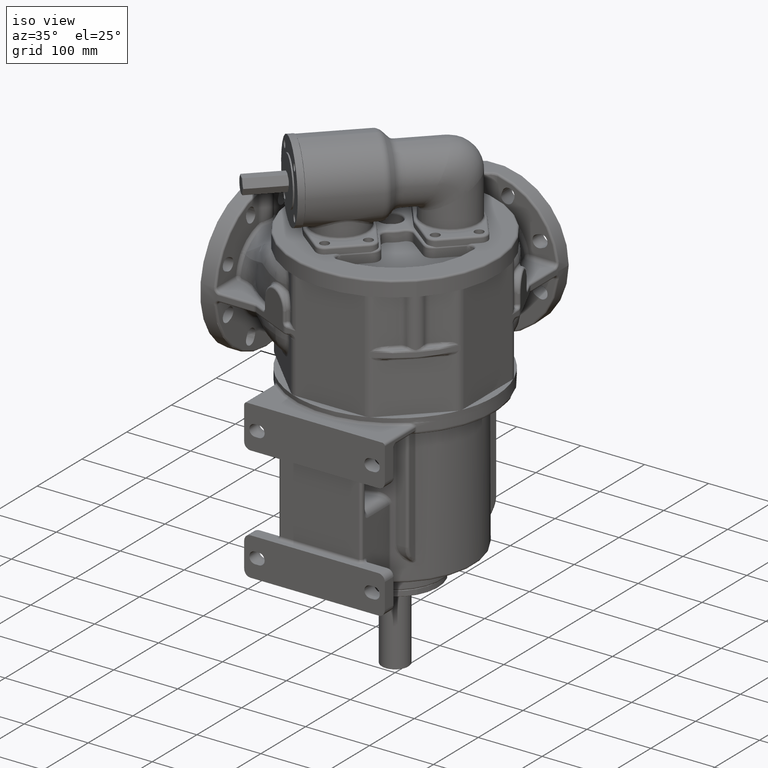
[diagram: clean part render]
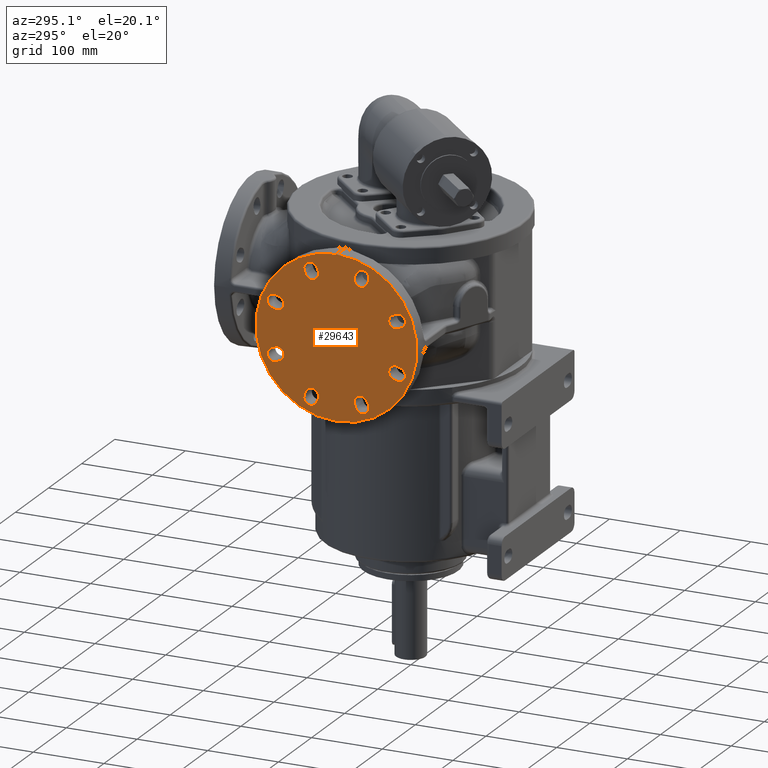
[diagram: tour spotlight — one face highlighted and labeled with its STEP entity id]
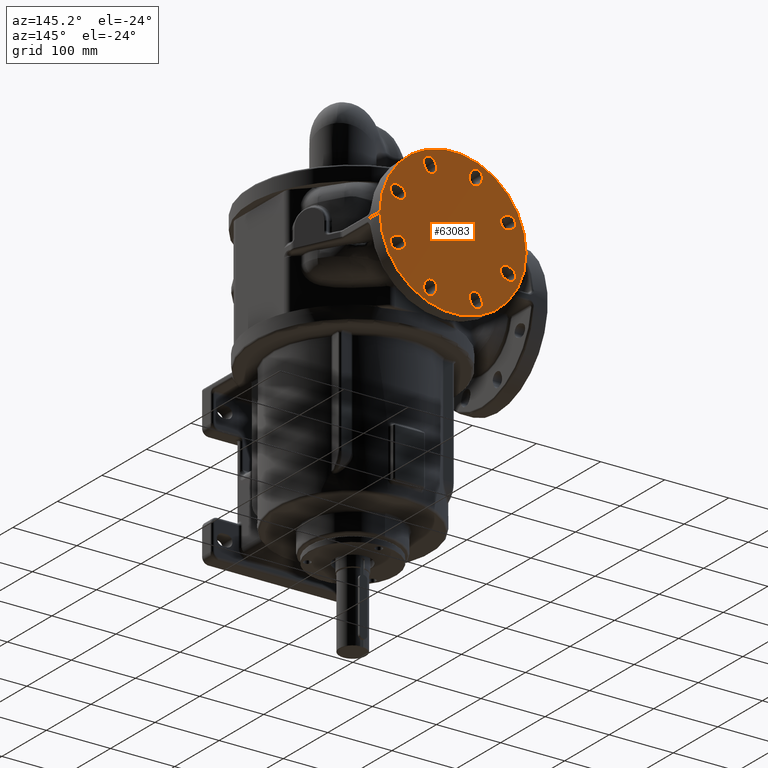
[diagram: tour spotlight — one face highlighted and labeled with its STEP entity id]
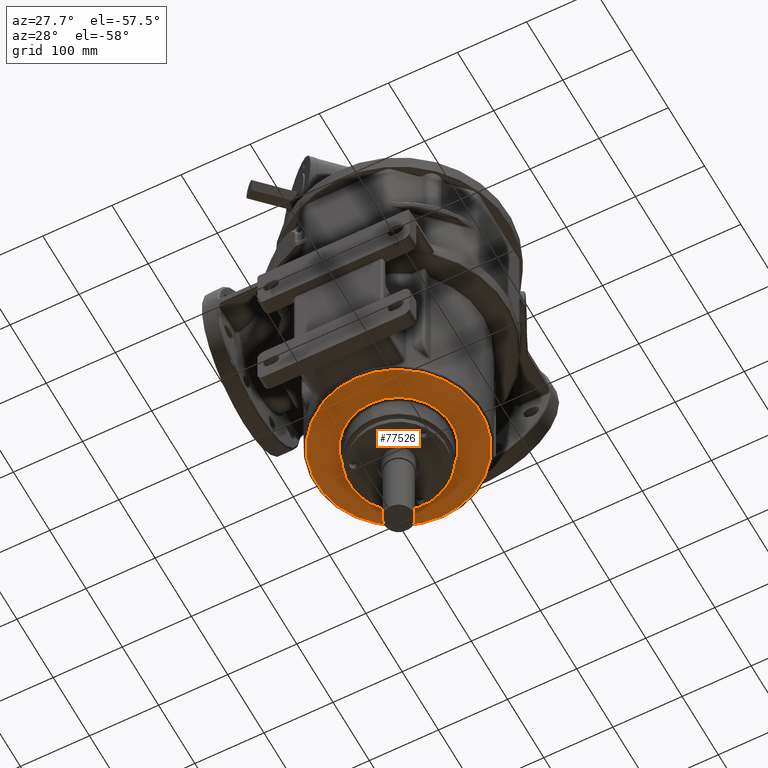
[diagram: tour spotlight — one face highlighted and labeled with its STEP entity id]
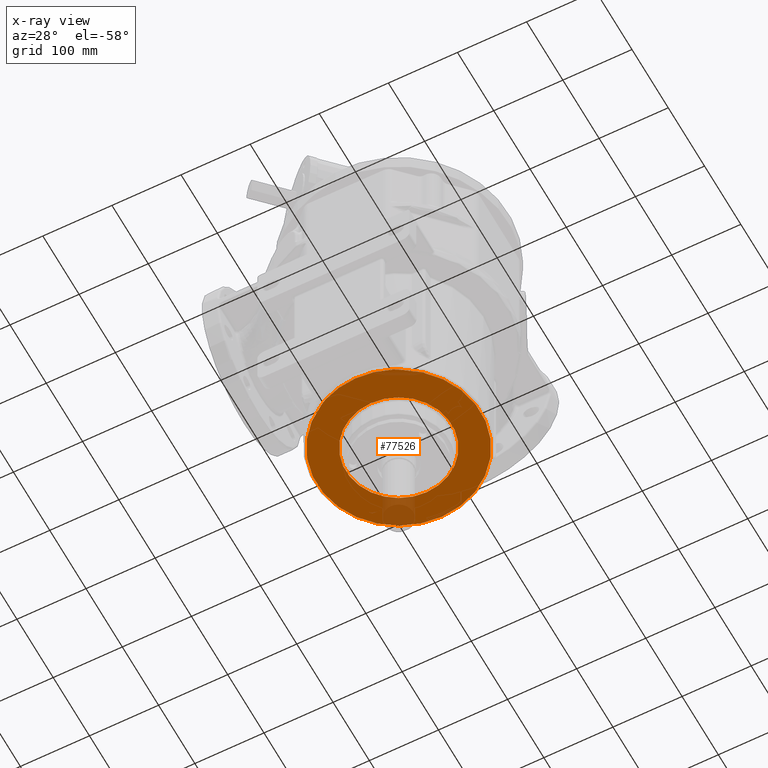
[diagram: x-ray of the same camera — body ghosted, this tour face saturated]
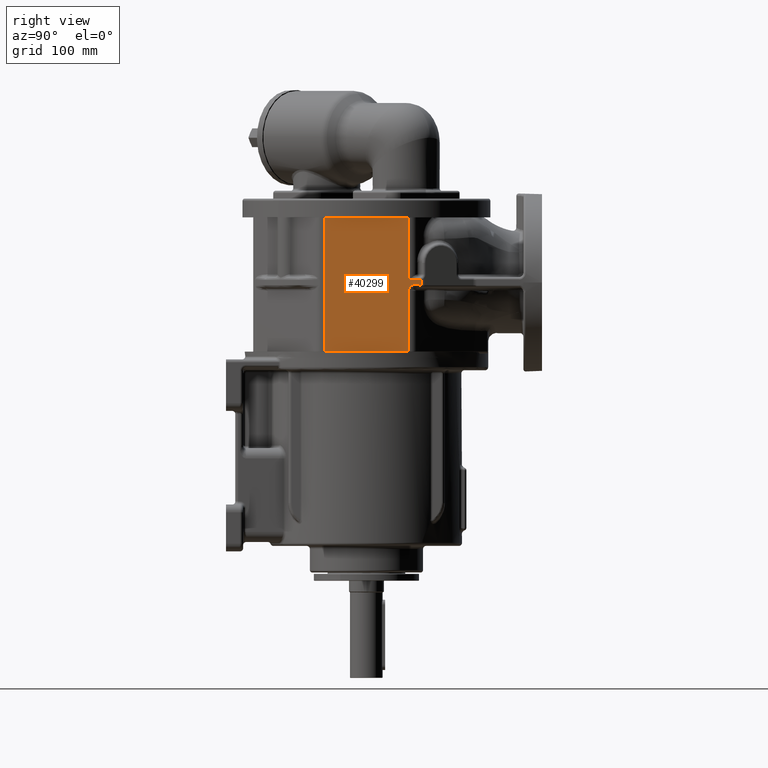
[diagram: tour spotlight — one face highlighted and labeled with its STEP entity id]
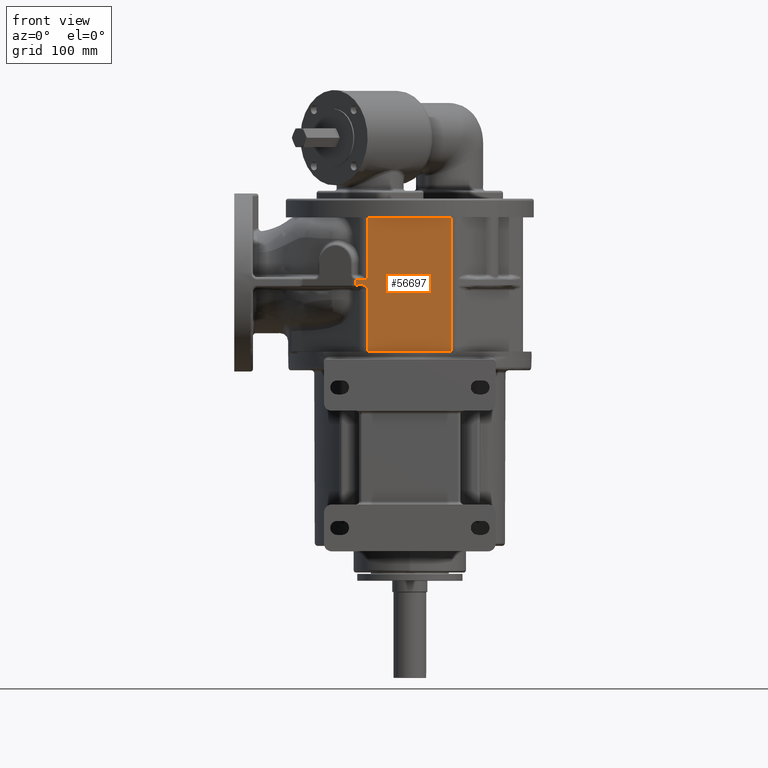
[diagram: tour spotlight — one face highlighted and labeled with its STEP entity id]
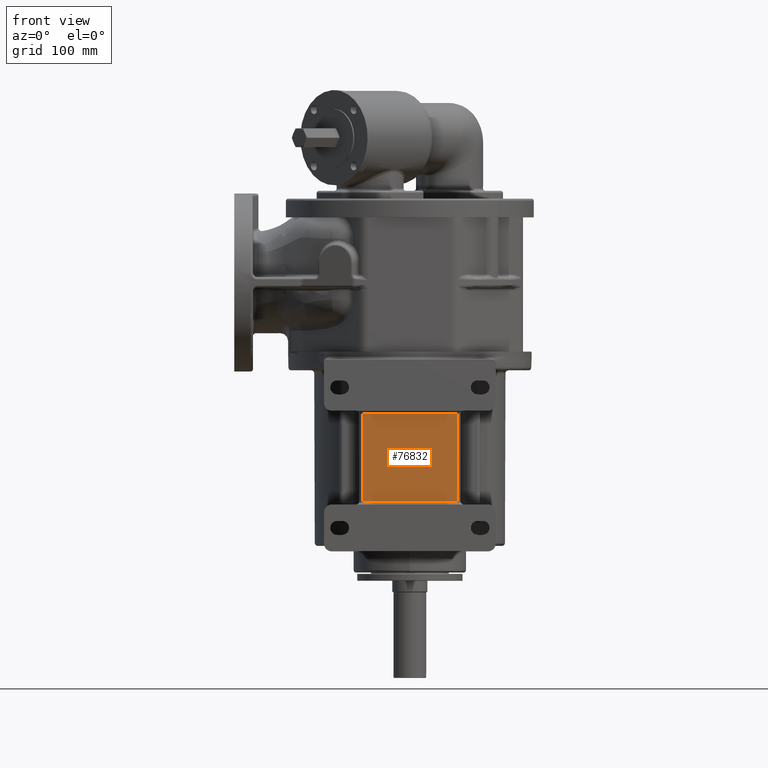
[diagram: tour spotlight — one face highlighted and labeled with its STEP entity id]
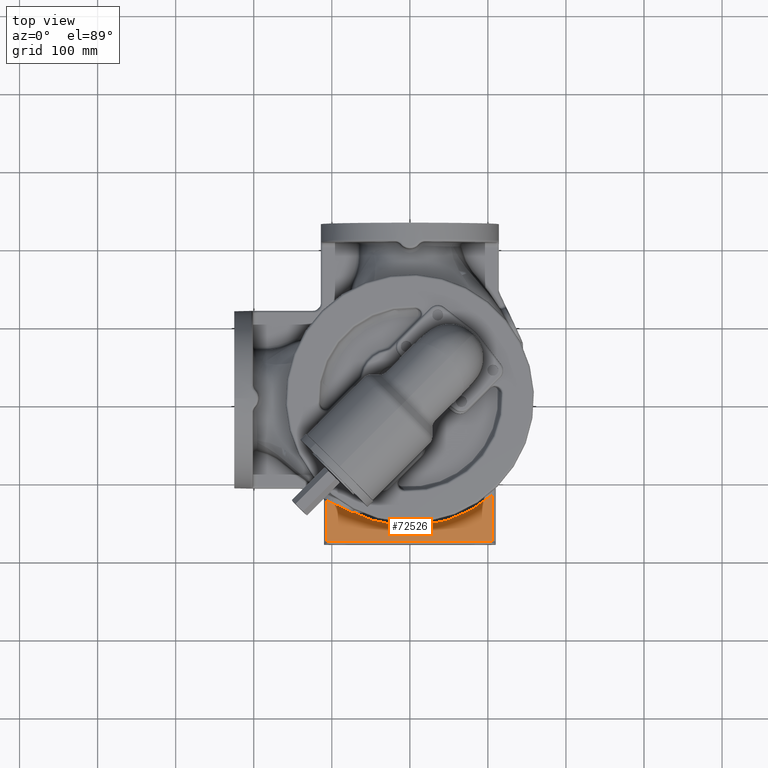
[diagram: tour spotlight — one face highlighted and labeled with its STEP entity id]
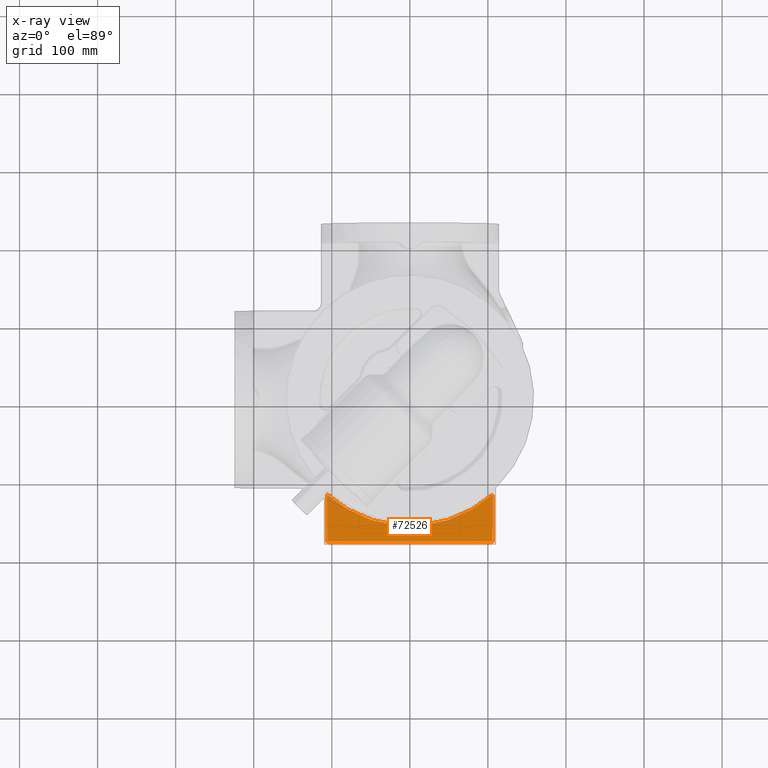
[diagram: x-ray of the same camera — body ghosted, this tour face saturated]
A machine part: a face-by-face anatomy tour. The part has 963 B-rep faces; the first image is the clean iso view, then the 7 largest visible faces are spotlighted one at a time (largest first), each with its STEP entity span.

Face 1 — auxiliary view, entity #29643. In plain terms, the highlighted planar face has unit normal (-1, 0, 0).
Definition (entity closure, byte-faithful):
#497=CARTESIAN_POINT('',(-2.25E2,0.E0,9.65E1));
#498=DIRECTION('',(-1.E0,0.E0,0.E0));
#499=DIRECTION('',(0.E0,0.E0,1.E0));
#500=AXIS2_PLACEMENT_3D('',#497,#498,#499);
#721=DIRECTION('',(0.E0,-3.826834323651E-1,-9.238795325113E-1));
#722=VECTOR('',#721,5.E0);
#723=CARTESIAN_POINT('',(-2.25E2,-2.585599507018E1,9.253409700260E0));
#724=LINE('',#723,#722);
#725=CARTESIAN_POINT('',(-2.25E2,-3.654626779087E1,8.269504645172E0));
#726=DIRECTION('',(-1.E0,0.E0,0.E0));
#727=DIRECTION('',(0.E0,9.238795325113E-1,-3.826834323651E-1));
#728=AXIS2_PLACEMENT_3D('',#725,#726,#727);
#730=DIRECTION('',(0.E0,3.826834323651E-1,9.238795325113E-1));
#731=VECTOR('',#730,5.E0);
#732=CARTESIAN_POINT('',(-2.25E2,-4.532312334972E1,1.190499725264E1));
#733=LINE('',#732,#731);
#734=CARTESIAN_POINT('',(-2.25E2,-3.463285062904E1,1.288890230773E1));
#735=DIRECTION('',(-1.E0,0.E0,0.E0));
#736=DIRECTION('',(0.E0,-9.238795325113E-1,3.826834323651E-1));
#737=AXIS2_PLACEMENT_3D('',#734,#735,#736);
#739=DIRECTION('',(0.E0,-9.238795325113E-1,-3.826834323651E-1));
#740=VECTOR('',#739,5.E0);
#741=CARTESIAN_POINT('',(-2.25E2,-7.997560508480E1,5.309029381210E1));
#742=LINE('',#741,#740);
#743=CARTESIAN_POINT('',(-2.25E2,-8.823049535483E1,5.995373220913E1));
#744=DIRECTION('',(-1.E0,0.E0,0.E0));
#745=DIRECTION('',(0.E0,3.826834323651E-1,-9.238795325113E-1));
#746=AXIS2_PLACEMENT_3D('',#743,#744,#745);
#748=DIRECTION('',(0.E0,9.238795325113E-1,3.826834323651E-1));
#749=VECTOR('',#748,5.E0);
#750=CARTESIAN_POINT('',(-2.25E2,-9.186598796230E1,6.873058776799E1));
#751=LINE('',#750,#749);
#752=CARTESIAN_POINT('',(-2.25E2,-8.361109769227E1,6.186714937096E1));
#753=DIRECTION('',(-1.E0,0.E0,0.E0));
#754=DIRECTION('',(0.E0,-3.826834323651E-1,9.238795325113E-1));
#755=AXIS2_PLACEMENT_3D('',#752,#753,#754);
#757=DIRECTION('',(0.E0,-9.238795325113E-1,3.826834323651E-1));
#758=VECTOR('',#757,5.E0);
#759=CARTESIAN_POINT('',(-2.25E2,-8.724659029974E1,1.223559950702E2));
#760=LINE('',#759,#758);
#761=CARTESIAN_POINT('',(-2.25E2,-8.823049535483E1,1.330462677909E2));
#762=DIRECTION('',(-1.E0,0.E0,0.E0));
#763=DIRECTION('',(0.E0,-3.826834323651E-1,-9.238795325113E-1));
#764=AXIS2_PLACEMENT_3D('',#761,#762,#763);
#766=DIRECTION('',(0.E0,9.238795325113E-1,-3.826834323651E-1));
#767=VECTOR('',#766,5.E0);
#768=CARTESIAN_POINT('',(-2.25E2,-8.459500274736E1,1.418231233497E2));
#769=LINE('',#768,#767);
#770=CARTESIAN_POINT('',(-2.25E2,-8.361109769227E1,1.311328506290E2));
#771=DIRECTION('',(-1.E0,0.E0,0.E0));
#772=DIRECTION('',(0.E0,3.826834323651E-1,9.238795325113E-1));
#773=AXIS2_PLACEMENT_3D('',#770,#771,#772);
#775=DIRECTION('',(0.E0,-3.826834323651E-1,9.238795325113E-1));
#776=VECTOR('',#775,5.E0);
#777=CARTESIAN_POINT('',(-2.25E2,-4.340970618790E1,1.764756050848E2));
#778=LINE('',#777,#776);
#779=CARTESIAN_POINT('',(-2.25E2,-3.654626779087E1,1.847304953548E2));
#780=DIRECTION('',(-1.E0,0.E0,0.E0));
#781=DIRECTION('',(0.E0,-9.238795325113E-1,-3.826834323651E-1));
#782=AXIS2_PLACEMENT_3D('',#779,#780,#781);
#784=DIRECTION('',(0.E0,3.826834323651E-1,-9.238795325113E-1));
#785=VECTOR('',#784,5.E0);
#786=CARTESIAN_POINT('',(-2.25E2,-2.776941223201E1,1.883659879623E2));
#787=LINE('',#786,#785);
#788=CARTESIAN_POINT('',(-2.25E2,-3.463285062904E1,1.801110976923E2));
#789=DIRECTION('',(-1.E0,0.E0,0.E0));
#790=DIRECTION('',(0.E0,9.238795325113E-1,3.826834323651E-1));
#791=AXIS2_PLACEMENT_3D('',#788,#789,#790);
#793=DIRECTION('',(0.E0,3.826834323651E-1,9.238795325113E-1));
#794=VECTOR('',#793,5.E0);
#795=CARTESIAN_POINT('',(-2.25E2,2.585599507018E1,1.837465902997E2));
#796=LINE('',#795,#794);
#797=CARTESIAN_POINT('',(-2.25E2,3.654626779087E1,1.847304953548E2));
#798=DIRECTION('',(-1.E0,0.E0,0.E0));
#799=DIRECTION('',(0.E0,-9.238795325113E-1,3.826834323651E-1));
#800=AXIS2_PLACEMENT_3D('',#797,#798,#799);
#802=DIRECTION('',(0.E0,-3.826834323651E-1,-9.238795325113E-1));
#803=VECTOR('',#802,5.E0);
#804=CARTESIAN_POINT('',(-2.25E2,4.532312334972E1,1.810950027474E2));
#805=LINE('',#804,#803);
#806=CARTESIAN_POINT('',(-2.25E2,3.463285062904E1,1.801110976923E2));
#807=DIRECTION('',(-1.E0,0.E0,0.E0));
#808=DIRECTION('',(0.E0,9.238795325113E-1,-3.826834323650E-1));
#809=AXIS2_PLACEMENT_3D('',#806,#807,#808);
#811=DIRECTION('',(0.E0,9.238795325113E-1,3.826834323651E-1));
#812=VECTOR('',#811,5.E0);
#813=CARTESIAN_POINT('',(-2.25E2,7.997560508480E1,1.399097061879E2));
#814=LINE('',#813,#812);
#815=CARTESIAN_POINT('',(-2.25E2,8.823049535483E1,1.330462677909E2));
#816=DIRECTION('',(-1.E0,0.E0,0.E0));
#817=DIRECTION('',(0.E0,-3.826834323652E-1,9.238795325113E-1));
#818=AXIS2_PLACEMENT_3D('',#815,#816,#817);
#820=DIRECTION('',(0.E0,-9.238795325113E-1,-3.826834323651E-1));
#821=VECTOR('',#820,5.E0);
#822=CARTESIAN_POINT('',(-2.25E2,9.186598796230E1,1.242694122320E2));
#823=LINE('',#822,#821);
#824=CARTESIAN_POINT('',(-2.25E2,8.361109769227E1,1.311328506290E2));
#825=DIRECTION('',(-1.E0,0.E0,0.E0));
#826=DIRECTION('',(0.E0,3.826834323651E-1,-9.238795325113E-1));
#827=AXIS2_PLACEMENT_3D('',#824,#825,#826);
#829=DIRECTION('',(0.E0,9.238795325113E-1,-3.826834323651E-1));
#830=VECTOR('',#829,5.E0);
#831=CARTESIAN_POINT('',(-2.25E2,8.724659029974E1,7.064400492982E1));
#832=LINE('',#831,#830);
#833=CARTESIAN_POINT('',(-2.25E2,8.823049535483E1,5.995373220913E1));
#834=DIRECTION('',(-1.E0,0.E0,0.E0));
#835=DIRECTION('',(0.E0,3.826834323650E-1,9.238795325113E-1));
#836=AXIS2_PLACEMENT_3D('',#833,#834,#835);
#838=DIRECTION('',(0.E0,-9.238795325113E-1,3.826834323651E-1));
#839=VECTOR('',#838,5.E0);
#840=CARTESIAN_POINT('',(-2.25E2,8.459500274736E1,5.117687665028E1));
#841=LINE('',#840,#839);
#842=CARTESIAN_POINT('',(-2.25E2,8.361109769227E1,6.186714937096E1));
#843=DIRECTION('',(-1.E0,0.E0,0.E0));
#844=DIRECTION('',(0.E0,-3.826834323650E-1,-9.238795325113E-1));
#845=AXIS2_PLACEMENT_3D('',#842,#843,#844);
#847=DIRECTION('',(0.E0,3.826834323651E-1,-9.238795325113E-1));
#848=VECTOR('',#847,5.E0);
#849=CARTESIAN_POINT('',(-2.25E2,4.340970618790E1,1.652439491520E1));
#850=LINE('',#849,#848);
#851=CARTESIAN_POINT('',(-2.25E2,3.654626779087E1,8.269504645172E0));
#852=DIRECTION('',(-1.E0,0.E0,0.E0));
#853=DIRECTION('',(0.E0,9.238795325113E-1,3.826834323651E-1));
#854=AXIS2_PLACEMENT_3D('',#851,#852,#853);
#856=DIRECTION('',(0.E0,-3.826834323651E-1,9.238795325113E-1));
#857=VECTOR('',#856,5.E0);
#858=CARTESIAN_POINT('',(-2.25E2,2.776941223201E1,4.634012037704E0));
#859=LINE('',#858,#857);
#860=CARTESIAN_POINT('',(-2.25E2,3.463285062904E1,1.288890230773E1));
#861=DIRECTION('',(-1.E0,0.E0,0.E0));
#862=DIRECTION('',(0.E0,-9.238795325113E-1,-3.826834323652E-1));
#863=AXIS2_PLACEMENT_3D('',#860,#861,#862);
#865=CARTESIAN_POINT('',(-2.25E2,0.E0,9.65E1));
#866=DIRECTION('',(-1.E0,0.E0,0.E0));
#867=DIRECTION('',(0.E0,0.E0,-1.E0));
#868=AXIS2_PLACEMENT_3D('',#865,#866,#867);
#25642=CARTESIAN_POINT('',(-2.25E2,-4.728089300816E-14,2.105E2));
#25643=CARTESIAN_POINT('',(-2.25E2,1.367731359340E-14,-1.75E1));
#25644=VERTEX_POINT('',#25642);
#25645=VERTEX_POINT('',#25643);
#26173=CARTESIAN_POINT('',(-2.25E2,-2.585599507018E1,9.253409700260E0));
#26174=CARTESIAN_POINT('',(-2.25E2,-2.776941223201E1,4.634012037704E0));
#26175=VERTEX_POINT('',#26173);
#26176=VERTEX_POINT('',#26174);
#26177=CARTESIAN_POINT('',(-2.25E2,-4.532312334972E1,1.190499725264E1));
#26178=VERTEX_POINT('',#26177);
#26179=CARTESIAN_POINT('',(-2.25E2,-4.340970618790E1,1.652439491520E1));
#26180=VERTEX_POINT('',#26179);
#26189=CARTESIAN_POINT('',(-2.25E2,-7.997560508480E1,5.309029381210E1));
#26190=CARTESIAN_POINT('',(-2.25E2,-8.459500274736E1,5.117687665028E1));
#26191=VERTEX_POINT('',#26189);
#26192=VERTEX_POINT('',#26190);
#26193=CARTESIAN_POINT('',(-2.25E2,-9.186598796230E1,6.873058776799E1));
#26194=VERTEX_POINT('',#26193);
#26195=CARTESIAN_POINT('',(-2.25E2,-8.724659029974E1,7.064400492982E1));
#26196=VERTEX_POINT('',#26195);
#26205=CARTESIAN_POINT('',(-2.25E2,-8.724659029974E1,1.223559950702E2));
#26206=CARTESIAN_POINT('',(-2.25E2,-9.186598796230E1,1.242694122320E2));
#26207=VERTEX_POINT('',#26205);
#26208=VERTEX_POINT('',#26206);
#26209=CARTESIAN_POINT('',(-2.25E2,-8.459500274736E1,1.418231233497E2));
#26210=VERTEX_POINT('',#26209);
#26211=CARTESIAN_POINT('',(-2.25E2,-7.997560508480E1,1.399097061879E2));
#26212=VERTEX_POINT('',#26211);
#26221=CARTESIAN_POINT('',(-2.25E2,-4.340970618790E1,1.764756050848E2));
#26222=CARTESIAN_POINT('',(-2.25E2,-4.532312334972E1,1.810950027474E2));
#26223=VERTEX_POINT('',#26221);
#26224=VERTEX_POINT('',#26222);
#26225=CARTESIAN_POINT('',(-2.25E2,-2.776941223201E1,1.883659879623E2));
#26226=VERTEX_POINT('',#26225);
#26227=CARTESIAN_POINT('',(-2.25E2,-2.585599507018E1,1.837465902997E2));
#26228=VERTEX_POINT('',#26227);
#26237=CARTESIAN_POINT('',(-2.25E2,2.585599507018E1,1.837465902997E2));
#26238=CARTESIAN_POINT('',(-2.25E2,2.776941223201E1,1.883659879623E2));
#26239=VERTEX_POINT('',#26237);
#26240=VERTEX_POINT('',#26238);
#26241=CARTESIAN_POINT('',(-2.25E2,4.532312334972E1,1.810950027474E2));
#26242=VERTEX_POINT('',#26241);
#26243=CARTESIAN_POINT('',(-2.25E2,4.340970618790E1,1.764756050848E2));
#26244=VERTEX_POINT('',#26243);
#26253=CARTESIAN_POINT('',(-2.25E2,7.997560508480E1,1.399097061879E2));
#26254=CARTESIAN_POINT('',(-2.25E2,8.459500274736E1,1.418231233497E2));
#26255=VERTEX_POINT('',#26253);
#26256=VERTEX_POINT('',#26254);
#26257=CARTESIAN_POINT('',(-2.25E2,9.186598796230E1,1.242694122320E2));
#26258=VERTEX_POINT('',#26257);
#26259=CARTESIAN_POINT('',(-2.25E2,8.724659029974E1,1.223559950702E2));
#26260=VERTEX_POINT('',#26259);
#26269=CARTESIAN_POINT('',(-2.25E2,8.724659029974E1,7.064400492982E1));
#26270=CARTESIAN_POINT('',(-2.25E2,9.186598796230E1,6.873058776799E1));
#26271=VERTEX_POINT('',#26269);
#26272=VERTEX_POINT('',#26270);
#26273=CARTESIAN_POINT('',(-2.25E2,8.459500274736E1,5.117687665028E1));
#26274=VERTEX_POINT('',#26273);
#26275=CARTESIAN_POINT('',(-2.25E2,7.997560508480E1,5.309029381210E1));
#26276=VERTEX_POINT('',#26275);
#26285=CARTESIAN_POINT('',(-2.25E2,4.340970618790E1,1.652439491520E1));
#26286=CARTESIAN_POINT('',(-2.25E2,4.532312334972E1,1.190499725264E1));
#26287=VERTEX_POINT('',#26285);
#26288=VERTEX_POINT('',#26286);
#26289=CARTESIAN_POINT('',(-2.25E2,2.776941223201E1,4.634012037704E0));
#26290=VERTEX_POINT('',#26289);
#26291=CARTESIAN_POINT('',(-2.25E2,2.585599507018E1,9.253409700260E0));
#26292=VERTEX_POINT('',#26291);
#29554=CARTESIAN_POINT('',(-2.25E2,0.E0,9.65E1));
#29555=DIRECTION('',(-1.E0,0.E0,0.E0));
#29556=DIRECTION('',(0.E0,1.E0,0.E0));
#29557=AXIS2_PLACEMENT_3D('',#29554,#29555,#29556);
#29558=PLANE('',#29557);
#29559=ORIENTED_EDGE('',*,*,#29524,.F.);
#29561=ORIENTED_EDGE('',*,*,#29560,.F.);
#29562=EDGE_LOOP('',(#29559,#29561));
#29563=FACE_OUTER_BOUND('',#29562,.F.);
#29565=ORIENTED_EDGE('',*,*,#29564,.T.);
#29567=ORIENTED_EDGE('',*,*,#29566,.T.);
#29569=ORIENTED_EDGE('',*,*,#29568,.T.);
#29571=ORIENTED_EDGE('',*,*,#29570,.T.);
#29572=EDGE_LOOP('',(#29565,#29567,#29569,#29571));
#29573=FACE_BOUND('',#29572,.F.);
#29575=ORIENTED_EDGE('',*,*,#29574,.T.);
#29577=ORIENTED_EDGE('',*,*,#29576,.T.);
#29579=ORIENTED_EDGE('',*,*,#29578,.T.);
#29581=ORIENTED_EDGE('',*,*,#29580,.T.);
#29582=EDGE_LOOP('',(#29575,#29577,#29579,#29581));
#29583=FACE_BOUND('',#29582,.F.);
#29585=ORIENTED_EDGE('',*,*,#29584,.T.);
#29587=ORIENTED_EDGE('',*,*,#29586,.T.);
#29589=ORIENTED_EDGE('',*,*,#29588,.T.);
#29591=ORIENTED_EDGE('',*,*,#29590,.T.);
#29592=EDGE_LOOP('',(#29585,#29587,#29589,#29591));
#29593=FACE_BOUND('',#29592,.F.);
#29595=ORIENTED_EDGE('',*,*,#29594,.T.);
#29597=ORIENTED_EDGE('',*,*,#29596,.T.);
#29599=ORIENTED_EDGE('',*,*,#29598,.T.);
#29601=ORIENTED_EDGE('',*,*,#29600,.T.);
#29602=EDGE_LOOP('',(#29595,#29597,#29599,#29601));
#29603=FACE_BOUND('',#29602,.F.);
#29605=ORIENTED_EDGE('',*,*,#29604,.T.);
#29607=ORIENTED_EDGE('',*,*,#29606,.T.);
#29609=ORIENTED_EDGE('',*,*,#29608,.T.);
#29611=ORIENTED_EDGE('',*,*,#29610,.T.);
#29612=EDGE_LOOP('',(#29605,#29607,#29609,#29611));
#29613=FACE_BOUND('',#29612,.F.);
#29615=ORIENTED_EDGE('',*,*,#29614,.T.);
#29617=ORIENTED_EDGE('',*,*,#29616,.T.);
#29619=ORIENTED_EDGE('',*,*,#29618,.T.);
#29621=ORIENTED_EDGE('',*,*,#29620,.T.);
#29622=EDGE_LOOP('',(#29615,#29617,#29619,#29621));
#29623=FACE_BOUND('',#29622,.F.);
#29625=ORIENTED_EDGE('',*,*,#29624,.T.);
#29627=ORIENTED_EDGE('',*,*,#29626,.T.);
#29629=ORIENTED_EDGE('',*,*,#29628,.T.);
#29630=ORIENTED_EDGE('',*,*,#27112,.T.);
#29631=EDGE_LOOP('',(#29625,#29627,#29629,#29630));
#29632=FACE_BOUND('',#29631,.F.);
#29634=ORIENTED_EDGE('',*,*,#29633,.T.);
#29636=ORIENTED_EDGE('',*,*,#29635,.T.);
#29638=ORIENTED_EDGE('',*,*,#29637,.T.);
#29640=ORIENTED_EDGE('',*,*,#29639,.T.);
#29641=EDGE_LOOP('',(#29634,#29636,#29638,#29640));
#29642=FACE_BOUND('',#29641,.F.);
#29643=ADVANCED_FACE('',(#29563,#29573,#29583,#29593,#29603,#29613,#29623,
#29632,#29642),#29558,.T.);
#501=CIRCLE('',#500,1.14E2);
#729=CIRCLE('',#728,9.5E0);
#738=CIRCLE('',#737,9.5E0);
#747=CIRCLE('',#746,9.5E0);
#756=CIRCLE('',#755,9.5E0);
#765=CIRCLE('',#764,9.5E0);
#774=CIRCLE('',#773,9.5E0);
#783=CIRCLE('',#782,9.5E0);
#792=CIRCLE('',#791,9.5E0);
#801=CIRCLE('',#800,9.5E0);
#810=CIRCLE('',#809,9.5E0);
#819=CIRCLE('',#818,9.5E0);
#828=CIRCLE('',#827,9.5E0);
#837=CIRCLE('',#836,9.5E0);
#846=CIRCLE('',#845,9.5E0);
#855=CIRCLE('',#854,9.5E0);
#864=CIRCLE('',#863,9.5E0);
#869=CIRCLE('',#868,1.14E2);
#27112=EDGE_CURVE('',#26276,#26271,#846,.T.);
#29524=EDGE_CURVE('',#25644,#25645,#501,.T.);
#29560=EDGE_CURVE('',#25645,#25644,#869,.T.);
#29564=EDGE_CURVE('',#26175,#26176,#724,.T.);
#29566=EDGE_CURVE('',#26176,#26178,#729,.T.);
#29568=EDGE_CURVE('',#26178,#26180,#733,.T.);
#29570=EDGE_CURVE('',#26180,#26175,#738,.T.);
#29574=EDGE_CURVE('',#26191,#26192,#742,.T.);
#29576=EDGE_CURVE('',#26192,#26194,#747,.T.);
#29578=EDGE_CURVE('',#26194,#26196,#751,.T.);
#29580=EDGE_CURVE('',#26196,#26191,#756,.T.);
#29584=EDGE_CURVE('',#26207,#26208,#760,.T.);
#29586=EDGE_CURVE('',#26208,#26210,#765,.T.);
#29588=EDGE_CURVE('',#26210,#26212,#769,.T.);
#29590=EDGE_CURVE('',#26212,#26207,#774,.T.);
#29594=EDGE_CURVE('',#26223,#26224,#778,.T.);
#29596=EDGE_CURVE('',#26224,#26226,#783,.T.);
#29598=EDGE_CURVE('',#26226,#26228,#787,.T.);
#29600=EDGE_CURVE('',#26228,#26223,#792,.T.);
#29604=EDGE_CURVE('',#26239,#26240,#796,.T.);
#29606=EDGE_CURVE('',#26240,#26242,#801,.T.);
#29608=EDGE_CURVE('',#26242,#26244,#805,.T.);
#29610=EDGE_CURVE('',#26244,#26239,#810,.T.);
#29614=EDGE_CURVE('',#26255,#26256,#814,.T.);
#29616=EDGE_CURVE('',#26256,#26258,#819,.T.);
#29618=EDGE_CURVE('',#26258,#26260,#823,.T.);
#29620=EDGE_CURVE('',#26260,#26255,#828,.T.);
#29624=EDGE_CURVE('',#26271,#26272,#832,.T.);
#29626=EDGE_CURVE('',#26272,#26274,#837,.T.);
#29628=EDGE_CURVE('',#26274,#26276,#841,.T.);
#29633=EDGE_CURVE('',#26287,#26288,#850,.T.);
#29635=EDGE_CURVE('',#26288,#26290,#855,.T.);
#29637=EDGE_CURVE('',#26290,#26292,#859,.T.);
#29639=EDGE_CURVE('',#26292,#26287,#864,.T.);

Face 2 — auxiliary view, entity #63083. In plain terms, the highlighted planar face has unit normal (0, 1, 0).
Definition (entity closure, byte-faithful):
#12516=CARTESIAN_POINT('',(1.377728649041E-14,2.25E2,9.65E1));
#12517=DIRECTION('',(0.E0,1.E0,0.E0));
#12518=DIRECTION('',(-1.E0,0.E0,0.E0));
#12519=AXIS2_PLACEMENT_3D('',#12516,#12517,#12518);
#12842=DIRECTION('',(3.826834323651E-1,0.E0,9.238795325113E-1));
#12843=VECTOR('',#12842,5.E0);
#12844=CARTESIAN_POINT('',(2.585599507018E1,2.25E2,1.837465902997E2));
#12845=LINE('',#12844,#12843);
#12846=CARTESIAN_POINT('',(3.654626779087E1,2.25E2,1.847304953548E2));
#12847=DIRECTION('',(0.E0,1.E0,0.E0));
#12848=DIRECTION('',(-9.238795325113E-1,0.E0,3.826834323651E-1));
#12849=AXIS2_PLACEMENT_3D('',#12846,#12847,#12848);
#12851=DIRECTION('',(-3.826834323651E-1,0.E0,-9.238795325113E-1));
#12852=VECTOR('',#12851,5.E0);
#12853=CARTESIAN_POINT('',(4.532312334972E1,2.25E2,1.810950027474E2));
#12854=LINE('',#12853,#12852);
#12855=CARTESIAN_POINT('',(3.463285062904E1,2.25E2,1.801110976923E2));
#12856=DIRECTION('',(0.E0,1.E0,0.E0));
#12857=DIRECTION('',(9.238795325113E-1,0.E0,-3.826834323651E-1));
#12858=AXIS2_PLACEMENT_3D('',#12855,#12856,#12857);
#12860=DIRECTION('',(9.238795325113E-1,0.E0,3.826834323651E-1));
#12861=VECTOR('',#12860,5.E0);
#12862=CARTESIAN_POINT('',(7.997560508480E1,2.25E2,1.399097061879E2));
#12863=LINE('',#12862,#12861);
#12864=CARTESIAN_POINT('',(8.823049535483E1,2.25E2,1.330462677909E2));
#12865=DIRECTION('',(0.E0,1.E0,0.E0));
#12866=DIRECTION('',(-3.826834323651E-1,0.E0,9.238795325113E-1));
#12867=AXIS2_PLACEMENT_3D('',#12864,#12865,#12866);
#12869=DIRECTION('',(-9.238795325113E-1,0.E0,-3.826834323651E-1));
#12870=VECTOR('',#12869,5.E0);
#12871=CARTESIAN_POINT('',(9.186598796230E1,2.25E2,1.242694122320E2));
#12872=LINE('',#12871,#12870);
#12873=CARTESIAN_POINT('',(8.361109769227E1,2.25E2,1.311328506290E2));
#12874=DIRECTION('',(0.E0,1.E0,0.E0));
#12875=DIRECTION('',(3.826834323651E-1,0.E0,-9.238795325113E-1));
#12876=AXIS2_PLACEMENT_3D('',#12873,#12874,#12875);
#12878=DIRECTION('',(9.238795325113E-1,0.E0,-3.826834323651E-1));
#12879=VECTOR('',#12878,5.E0);
#12880=CARTESIAN_POINT('',(8.724659029974E1,2.25E2,7.064400492982E1));
#12881=LINE('',#12880,#12879);
#12882=CARTESIAN_POINT('',(8.823049535483E1,2.25E2,5.995373220913E1));
#12883=DIRECTION('',(0.E0,1.E0,0.E0));
#12884=DIRECTION('',(3.826834323651E-1,0.E0,9.238795325113E-1));
#12885=AXIS2_PLACEMENT_3D('',#12882,#12883,#12884);
#12887=DIRECTION('',(-9.238795325113E-1,0.E0,3.826834323651E-1));
#12888=VECTOR('',#12887,5.E0);
#12889=CARTESIAN_POINT('',(8.459500274736E1,2.25E2,5.117687665028E1));
#12890=LINE('',#12889,#12888);
#12891=CARTESIAN_POINT('',(8.361109769227E1,2.25E2,6.186714937096E1));
#12892=DIRECTION('',(0.E0,1.E0,0.E0));
#12893=DIRECTION('',(-3.826834323651E-1,0.E0,-9.238795325113E-1));
#12894=AXIS2_PLACEMENT_3D('',#12891,#12892,#12893);
#12896=DIRECTION('',(3.826834323651E-1,0.E0,-9.238795325113E-1));
#12897=VECTOR('',#12896,5.E0);
#12898=CARTESIAN_POINT('',(4.340970618790E1,2.25E2,1.652439491520E1));
#12899=LINE('',#12898,#12897);
#12900=CARTESIAN_POINT('',(3.654626779087E1,2.25E2,8.269504645172E0));
#12901=DIRECTION('',(0.E0,1.E0,0.E0));
#12902=DIRECTION('',(9.238795325113E-1,0.E0,3.826834323651E-1));
#12903=AXIS2_PLACEMENT_3D('',#12900,#12901,#12902);
#12905=DIRECTION('',(-3.826834323651E-1,0.E0,9.238795325113E-1));
#12906=VECTOR('',#12905,5.E0);
#12907=CARTESIAN_POINT('',(2.776941223201E1,2.25E2,4.634012037704E0));
#12908=LINE('',#12907,#12906);
#12909=CARTESIAN_POINT('',(3.463285062904E1,2.25E2,1.288890230773E1));
#12910=DIRECTION('',(0.E0,1.E0,0.E0));
#12911=DIRECTION('',(-9.238795325113E-1,0.E0,-3.826834323651E-1));
#12912=AXIS2_PLACEMENT_3D('',#12909,#12910,#12911);
#12914=DIRECTION('',(-3.826834323651E-1,0.E0,-9.238795325113E-1));
#12915=VECTOR('',#12914,5.E0);
#12916=CARTESIAN_POINT('',(-2.585599507018E1,2.25E2,9.253409700260E0));
#12917=LINE('',#12916,#12915);
#12918=CARTESIAN_POINT('',(-3.654626779087E1,2.25E2,8.269504645172E0));
#12919=DIRECTION('',(0.E0,1.E0,0.E0));
#12920=DIRECTION('',(9.238795325113E-1,0.E0,-3.826834323651E-1));
#12921=AXIS2_PLACEMENT_3D('',#12918,#12919,#12920);
#12923=DIRECTION('',(3.826834323651E-1,0.E0,9.238795325113E-1));
#12924=VECTOR('',#12923,5.E0);
#12925=CARTESIAN_POINT('',(-4.532312334972E1,2.25E2,1.190499725264E1));
#12926=LINE('',#12925,#12924);
#12927=CARTESIAN_POINT('',(-3.463285062904E1,2.25E2,1.288890230773E1));
#12928=DIRECTION('',(0.E0,1.E0,0.E0));
#12929=DIRECTION('',(-9.238795325113E-1,0.E0,3.826834323650E-1));
#12930=AXIS2_PLACEMENT_3D('',#12927,#12928,#12929);
#12932=DIRECTION('',(-9.238795325113E-1,0.E0,-3.826834323651E-1));
#12933=VECTOR('',#12932,5.E0);
#12934=CARTESIAN_POINT('',(-7.997560508480E1,2.25E2,5.309029381210E1));
#12935=LINE('',#12934,#12933);
#12936=CARTESIAN_POINT('',(-8.823049535483E1,2.25E2,5.995373220913E1));
#12937=DIRECTION('',(0.E0,1.E0,0.E0));
#12938=DIRECTION('',(3.826834323652E-1,0.E0,-9.238795325112E-1));
#12939=AXIS2_PLACEMENT_3D('',#12936,#12937,#12938);
#12941=DIRECTION('',(9.238795325113E-1,0.E0,3.826834323651E-1));
#12942=VECTOR('',#12941,5.E0);
#12943=CARTESIAN_POINT('',(-9.186598796230E1,2.25E2,6.873058776799E1));
#12944=LINE('',#12943,#12942);
#12945=CARTESIAN_POINT('',(-8.361109769227E1,2.25E2,6.186714937096E1));
#12946=DIRECTION('',(0.E0,1.E0,0.E0));
#12947=DIRECTION('',(-3.826834323651E-1,0.E0,9.238795325113E-1));
#12948=AXIS2_PLACEMENT_3D('',#12945,#12946,#12947);
#12950=DIRECTION('',(-9.238795325113E-1,0.E0,3.826834323651E-1));
#12951=VECTOR('',#12950,5.E0);
#12952=CARTESIAN_POINT('',(-8.724659029974E1,2.25E2,1.223559950702E2));
#12953=LINE('',#12952,#12951);
#12954=CARTESIAN_POINT('',(-8.823049535483E1,2.25E2,1.330462677909E2));
#12955=DIRECTION('',(0.E0,1.E0,0.E0));
#12956=DIRECTION('',(-3.826834323650E-1,0.E0,-9.238795325113E-1));
#12957=AXIS2_PLACEMENT_3D('',#12954,#12955,#12956);
#12959=DIRECTION('',(9.238795325113E-1,0.E0,-3.826834323651E-1));
#12960=VECTOR('',#12959,5.E0);
#12961=CARTESIAN_POINT('',(-8.459500274736E1,2.25E2,1.418231233497E2));
#12962=LINE('',#12961,#12960);
#12963=CARTESIAN_POINT('',(-8.361109769227E1,2.25E2,1.311328506290E2));
#12964=DIRECTION('',(0.E0,1.E0,0.E0));
#12965=DIRECTION('',(3.826834323651E-1,0.E0,9.238795325113E-1));
#12966=AXIS2_PLACEMENT_3D('',#12963,#12964,#12965);
#12968=DIRECTION('',(-3.826834323651E-1,0.E0,9.238795325113E-1));
#12969=VECTOR('',#12968,5.E0);
#12970=CARTESIAN_POINT('',(-4.340970618790E1,2.25E2,1.764756050848E2));
#12971=LINE('',#12970,#12969);
#12972=CARTESIAN_POINT('',(-3.654626779087E1,2.25E2,1.847304953548E2));
#12973=DIRECTION('',(0.E0,1.E0,0.E0));
#12974=DIRECTION('',(-9.238795325113E-1,0.E0,-3.826834323651E-1));
#12975=AXIS2_PLACEMENT_3D('',#12972,#12973,#12974);
#12977=DIRECTION('',(3.826834323651E-1,0.E0,-9.238795325113E-1));
#12978=VECTOR('',#12977,5.E0);
#12979=CARTESIAN_POINT('',(-2.776941223201E1,2.25E2,1.883659879623E2));
#12980=LINE('',#12979,#12978);
#12981=CARTESIAN_POINT('',(-3.463285062904E1,2.25E2,1.801110976923E2));
#12982=DIRECTION('',(0.E0,1.E0,0.E0));
#12983=DIRECTION('',(9.238795325112E-1,0.E0,3.826834323652E-1));
#12984=AXIS2_PLACEMENT_3D('',#12981,#12982,#12983);
#12986=CARTESIAN_POINT('',(1.377728649041E-14,2.25E2,9.65E1));
#12987=DIRECTION('',(0.E0,1.E0,0.E0));
#12988=DIRECTION('',(1.E0,0.E0,0.E0));
#12989=AXIS2_PLACEMENT_3D('',#12986,#12987,#12988);
#25646=CARTESIAN_POINT('',(1.14E2,2.25E2,9.65E1));
#25647=CARTESIAN_POINT('',(-1.14E2,2.25E2,9.65E1));
#25648=VERTEX_POINT('',#25646);
#25649=VERTEX_POINT('',#25647);
#26301=CARTESIAN_POINT('',(2.585599507018E1,2.25E2,1.837465902997E2));
#26302=CARTESIAN_POINT('',(2.776941223201E1,2.25E2,1.883659879623E2));
#26303=VERTEX_POINT('',#26301);
#26304=VERTEX_POINT('',#26302);
#26305=CARTESIAN_POINT('',(4.532312334972E1,2.25E2,1.810950027474E2));
#26306=VERTEX_POINT('',#26305);
#26307=CARTESIAN_POINT('',(4.340970618790E1,2.25E2,1.764756050848E2));
#26308=VERTEX_POINT('',#26307);
#26317=CARTESIAN_POINT('',(7.997560508480E1,2.25E2,1.399097061879E2));
#26318=CARTESIAN_POINT('',(8.459500274736E1,2.25E2,1.418231233497E2));
#26319=VERTEX_POINT('',#26317);
#26320=VERTEX_POINT('',#26318);
#26321=CARTESIAN_POINT('',(9.186598796230E1,2.25E2,1.242694122320E2));
#26322=VERTEX_POINT('',#26321);
#26323=CARTESIAN_POINT('',(8.724659029974E1,2.25E2,1.223559950702E2));
#26324=VERTEX_POINT('',#26323);
#26333=CARTESIAN_POINT('',(8.724659029974E1,2.25E2,7.064400492982E1));
#26334=CARTESIAN_POINT('',(9.186598796230E1,2.25E2,6.873058776799E1));
#26335=VERTEX_POINT('',#26333);
#26336=VERTEX_POINT('',#26334);
#26337=CARTESIAN_POINT('',(8.459500274736E1,2.25E2,5.117687665028E1));
#26338=VERTEX_POINT('',#26337);
#26339=CARTESIAN_POINT('',(7.997560508480E1,2.25E2,5.309029381210E1));
#26340=VERTEX_POINT('',#26339);
#26349=CARTESIAN_POINT('',(4.340970618790E1,2.25E2,1.652439491520E1));
#26350=CARTESIAN_POINT('',(4.532312334972E1,2.25E2,1.190499725264E1));
#26351=VERTEX_POINT('',#26349);
#26352=VERTEX_POINT('',#26350);
#26353=CARTESIAN_POINT('',(2.776941223201E1,2.25E2,4.634012037704E0));
#26354=VERTEX_POINT('',#26353);
#26355=CARTESIAN_POINT('',(2.585599507018E1,2.25E2,9.253409700260E0));
#26356=VERTEX_POINT('',#26355);
#26365=CARTESIAN_POINT('',(-2.585599507018E1,2.25E2,9.253409700260E0));
#26366=CARTESIAN_POINT('',(-2.776941223201E1,2.25E2,4.634012037704E0));
#26367=VERTEX_POINT('',#26365);
#26368=VERTEX_POINT('',#26366);
#26369=CARTESIAN_POINT('',(-4.532312334972E1,2.25E2,1.190499725264E1));
#26370=VERTEX_POINT('',#26369);
#26371=CARTESIAN_POINT('',(-4.340970618790E1,2.25E2,1.652439491520E1));
#26372=VERTEX_POINT('',#26371);
#26381=CARTESIAN_POINT('',(-7.997560508480E1,2.25E2,5.309029381210E1));
#26382=CARTESIAN_POINT('',(-8.459500274736E1,2.25E2,5.117687665028E1));
#26383=VERTEX_POINT('',#26381);
#26384=VERTEX_POINT('',#26382);
#26385=CARTESIAN_POINT('',(-9.186598796230E1,2.25E2,6.873058776799E1));
#26386=VERTEX_POINT('',#26385);
#26387=CARTESIAN_POINT('',(-8.724659029974E1,2.25E2,7.064400492982E1));
#26388=VERTEX_POINT('',#26387);
#26397=CARTESIAN_POINT('',(-8.724659029974E1,2.25E2,1.223559950702E2));
#26398=CARTESIAN_POINT('',(-9.186598796230E1,2.25E2,1.242694122320E2));
#26399=VERTEX_POINT('',#26397);
#26400=VERTEX_POINT('',#26398);
#26401=CARTESIAN_POINT('',(-8.459500274736E1,2.25E2,1.418231233497E2));
#26402=VERTEX_POINT('',#26401);
#26403=CARTESIAN_POINT('',(-7.997560508480E1,2.25E2,1.399097061879E2));
#26404=VERTEX_POINT('',#26403);
#26413=CARTESIAN_POINT('',(-4.340970618790E1,2.25E2,1.764756050848E2));
#26414=CARTESIAN_POINT('',(-4.532312334972E1,2.25E2,1.810950027474E2));
#26415=VERTEX_POINT('',#26413);
#26416=VERTEX_POINT('',#26414);
#26417=CARTESIAN_POINT('',(-2.776941223201E1,2.25E2,1.883659879623E2));
#26418=VERTEX_POINT('',#26417);
#26419=CARTESIAN_POINT('',(-2.585599507018E1,2.25E2,1.837465902997E2));
#26420=VERTEX_POINT('',#26419);
#62993=CARTESIAN_POINT('',(1.377728649041E-14,2.25E2,9.65E1));
#62994=DIRECTION('',(0.E0,1.E0,0.E0));
#62995=DIRECTION('',(0.E0,0.E0,-1.E0));
#62996=AXIS2_PLACEMENT_3D('',#62993,#62994,#62995);
#62997=PLANE('',#62996);
#62999=ORIENTED_EDGE('',*,*,#62998,.F.);
#63000=ORIENTED_EDGE('',*,*,#62956,.F.);
#63001=EDGE_LOOP('',(#62999,#63000));
#63002=FACE_OUTER_BOUND('',#63001,.F.);
#63004=ORIENTED_EDGE('',*,*,#63003,.T.);
#63006=ORIENTED_EDGE('',*,*,#63005,.T.);
#63008=ORIENTED_EDGE('',*,*,#63007,.T.);
#63010=ORIENTED_EDGE('',*,*,#63009,.T.);
#63011=EDGE_LOOP('',(#63004,#63006,#63008,#63010));
#63012=FACE_BOUND('',#63011,.F.);
#63014=ORIENTED_EDGE('',*,*,#63013,.T.);
#63016=ORIENTED_EDGE('',*,*,#63015,.T.);
#63018=ORIENTED_EDGE('',*,*,#63017,.T.);
#63020=ORIENTED_EDGE('',*,*,#63019,.T.);
#63021=EDGE_LOOP('',(#63014,#63016,#63018,#63020));
#63022=FACE_BOUND('',#63021,.F.);
#63024=ORIENTED_EDGE('',*,*,#63023,.T.);
#63026=ORIENTED_EDGE('',*,*,#63025,.T.);
#63028=ORIENTED_EDGE('',*,*,#63027,.T.);
#63030=ORIENTED_EDGE('',*,*,#63029,.T.);
#63031=EDGE_LOOP('',(#63024,#63026,#63028,#63030));
#63032=FACE_BOUND('',#63031,.F.);
#63034=ORIENTED_EDGE('',*,*,#63033,.T.);
#63036=ORIENTED_EDGE('',*,*,#63035,.T.);
#63038=ORIENTED_EDGE('',*,*,#63037,.T.);
#63040=ORIENTED_EDGE('',*,*,#63039,.T.);
#63041=EDGE_LOOP('',(#63034,#63036,#63038,#63040));
#63042=FACE_BOUND('',#63041,.F.);
#63044=ORIENTED_EDGE('',*,*,#63043,.T.);
#63046=ORIENTED_EDGE('',*,*,#63045,.T.);
#63048=ORIENTED_EDGE('',*,*,#63047,.T.);
#63050=ORIENTED_EDGE('',*,*,#63049,.T.);
#63051=EDGE_LOOP('',(#63044,#63046,#63048,#63050));
#63052=FACE_BOUND('',#63051,.F.);
#63054=ORIENTED_EDGE('',*,*,#63053,.T.);
#63056=ORIENTED_EDGE('',*,*,#63055,.T.);
#63058=ORIENTED_EDGE('',*,*,#63057,.T.);
#63060=ORIENTED_EDGE('',*,*,#63059,.T.);
#63061=EDGE_LOOP('',(#63054,#63056,#63058,#63060));
#63062=FACE_BOUND('',#63061,.F.);
#63064=ORIENTED_EDGE('',*,*,#63063,.T.);
#63066=ORIENTED_EDGE('',*,*,#63065,.T.);
#63068=ORIENTED_EDGE('',*,*,#63067,.T.);
#63070=ORIENTED_EDGE('',*,*,#63069,.T.);
#63071=EDGE_LOOP('',(#63064,#63066,#63068,#63070));
#63072=FACE_BOUND('',#63071,.F.);
#63074=ORIENTED_EDGE('',*,*,#63073,.T.);
#63076=ORIENTED_EDGE('',*,*,#63075,.T.);
#63078=ORIENTED_EDGE('',*,*,#63077,.T.);
#63080=ORIENTED_EDGE('',*,*,#63079,.T.);
#63081=EDGE_LOOP('',(#63074,#63076,#63078,#63080));
#63082=FACE_BOUND('',#63081,.F.);
#63083=ADVANCED_FACE('',(#63002,#63012,#63022,#63032,#63042,#63052,#63062,
#63072,#63082),#62997,.T.);
#12520=CIRCLE('',#12519,1.14E2);
#12850=CIRCLE('',#12849,9.5E0);
#12859=CIRCLE('',#12858,9.5E0);
#12868=CIRCLE('',#12867,9.5E0);
#12877=CIRCLE('',#12876,9.5E0);
#12886=CIRCLE('',#12885,9.5E0);
#12895=CIRCLE('',#12894,9.5E0);
#12904=CIRCLE('',#12903,9.5E0);
#12913=CIRCLE('',#12912,9.5E0);
#12922=CIRCLE('',#12921,9.5E0);
#12931=CIRCLE('',#12930,9.5E0);
#12940=CIRCLE('',#12939,9.5E0);
#12949=CIRCLE('',#12948,9.5E0);
#12958=CIRCLE('',#12957,9.5E0);
#12967=CIRCLE('',#12966,9.5E0);
#12976=CIRCLE('',#12975,9.5E0);
#12985=CIRCLE('',#12984,9.5E0);
#12990=CIRCLE('',#12989,1.14E2);
#62956=EDGE_CURVE('',#25649,#25648,#12520,.T.);
#62998=EDGE_CURVE('',#25648,#25649,#12990,.T.);
#63003=EDGE_CURVE('',#26303,#26304,#12845,.T.);
#63005=EDGE_CURVE('',#26304,#26306,#12850,.T.);
#63007=EDGE_CURVE('',#26306,#26308,#12854,.T.);
#63009=EDGE_CURVE('',#26308,#26303,#12859,.T.);
#63013=EDGE_CURVE('',#26319,#26320,#12863,.T.);
#63015=EDGE_CURVE('',#26320,#26322,#12868,.T.);
#63017=EDGE_CURVE('',#26322,#26324,#12872,.T.);
#63019=EDGE_CURVE('',#26324,#26319,#12877,.T.);
#63023=EDGE_CURVE('',#26335,#26336,#12881,.T.);
#63025=EDGE_CURVE('',#26336,#26338,#12886,.T.);
#63027=EDGE_CURVE('',#26338,#26340,#12890,.T.);
#63029=EDGE_CURVE('',#26340,#26335,#12895,.T.);
#63033=EDGE_CURVE('',#26351,#26352,#12899,.T.);
#63035=EDGE_CURVE('',#26352,#26354,#12904,.T.);
#63037=EDGE_CURVE('',#26354,#26356,#12908,.T.);
#63039=EDGE_CURVE('',#26356,#26351,#12913,.T.);
#63043=EDGE_CURVE('',#26367,#26368,#12917,.T.);
#63045=EDGE_CURVE('',#26368,#26370,#12922,.T.);
#63047=EDGE_CURVE('',#26370,#26372,#12926,.T.);
#63049=EDGE_CURVE('',#26372,#26367,#12931,.T.);
#63053=EDGE_CURVE('',#26383,#26384,#12935,.T.);
#63055=EDGE_CURVE('',#26384,#26386,#12940,.T.);
#63057=EDGE_CURVE('',#26386,#26388,#12944,.T.);
#63059=EDGE_CURVE('',#26388,#26383,#12949,.T.);
#63063=EDGE_CURVE('',#26399,#26400,#12953,.T.);
#63065=EDGE_CURVE('',#26400,#26402,#12958,.T.);
#63067=EDGE_CURVE('',#26402,#26404,#12962,.T.);
#63069=EDGE_CURVE('',#26404,#26399,#12967,.T.);
#63073=EDGE_CURVE('',#26415,#26416,#12971,.T.);
#63075=EDGE_CURVE('',#26416,#26418,#12976,.T.);
#63077=EDGE_CURVE('',#26418,#26420,#12980,.T.);
#63079=EDGE_CURVE('',#26420,#26415,#12985,.T.);

Face 3 — auxiliary view, entity #77526. An x-ray twin of the same camera follows (body ghosted, this face saturated) — the face is partly hidden behind the body. In plain terms, the highlighted planar face has unit normal (0, 0, -1).
Definition (entity closure, byte-faithful):
#19322=CARTESIAN_POINT('',(5.774523812279E1,-1.034781980277E2,-2.41E2));
#19323=CARTESIAN_POINT('',(5.746018496967E1,-1.036372698464E2,-2.41E2));
#19324=CARTESIAN_POINT('',(5.685261449164E1,-1.039870712639E2,-2.41E2));
#19325=CARTESIAN_POINT('',(5.583646830303E1,-1.046040875997E2,-2.41E2));
#19326=CARTESIAN_POINT('',(5.469304757328E1,-1.053219727013E2,-2.41E2));
#19327=CARTESIAN_POINT('',(5.344333474806E1,-1.061083897458E2,-2.41E2));
#19328=CARTESIAN_POINT('',(5.234979745863E1,-1.067739136090E2,-2.41E2));
#19329=CARTESIAN_POINT('',(5.137456003341E1,-1.073363199110E2,-2.41E2));
#19330=CARTESIAN_POINT('',(5.051578740440E1,-1.078004437686E2,-2.41E2));
#19331=CARTESIAN_POINT('',(4.972019556630E1,-1.082018273735E2,-2.41E2));
#19332=CARTESIAN_POINT('',(4.920364300710E1,-1.084436712280E2,-2.41E2));
#19333=CARTESIAN_POINT('',(4.895144394789E1,-1.085573945808E2,-2.41E2));
#19335=CARTESIAN_POINT('',(-4.895144393746E1,-1.085573945855E2,-2.41E2));
#19336=CARTESIAN_POINT('',(-4.920357708850E1,-1.084437009491E2,-2.41E2));
#19337=CARTESIAN_POINT('',(-4.971993719018E1,-1.082019503613E2,-2.41E2));
#19338=CARTESIAN_POINT('',(-5.051516022398E1,-1.078007618815E2,-2.41E2));
#19339=CARTESIAN_POINT('',(-5.137320292978E1,-1.073370815131E2,-2.41E2));
#19340=CARTESIAN_POINT('',(-5.234834191270E1,-1.067747506794E2,-2.41E2));
#19341=CARTESIAN_POINT('',(-5.343644885875E1,-1.061126279672E2,-2.41E2));
#19342=CARTESIAN_POINT('',(-5.467733103908E1,-1.053318815618E2,-2.41E2));
#19343=CARTESIAN_POINT('',(-5.584075226153E1,-1.046013838953E2,-2.41E2));
#19344=CARTESIAN_POINT('',(-5.685208748044E1,-1.039874264530E2,-2.41E2));
#19345=CARTESIAN_POINT('',(-5.746048539518E1,-1.036371023113E2,-2.41E2));
#19346=CARTESIAN_POINT('',(-5.774523810501E1,-1.034781980630E2,-2.41E2));
#19348=CARTESIAN_POINT('',(0.E0,0.E0,-2.41E2));
#19349=DIRECTION('',(0.E0,0.E0,-1.E0));
#19350=DIRECTION('',(4.110671923972E-1,-9.116050478879E-1,0.E0));
#19351=AXIS2_PLACEMENT_3D('',#19348,#19349,#19350);
#19353=CARTESIAN_POINT('',(0.E0,0.E0,-2.41E2));
#19354=DIRECTION('',(0.E0,0.E0,1.E0));
#19355=DIRECTION('',(-1.584788422417E-14,1.E0,0.E0));
#19356=AXIS2_PLACEMENT_3D('',#19353,#19354,#19355);
#19358=CARTESIAN_POINT('',(0.E0,0.E0,-2.41E2));
#19359=DIRECTION('',(0.E0,0.E0,1.E0));
#19360=DIRECTION('',(0.E0,-1.E0,0.E0));
#19361=AXIS2_PLACEMENT_3D('',#19358,#19359,#19360);
#19368=CARTESIAN_POINT('',(0.E0,0.E0,-2.41E2));
#19369=DIRECTION('',(0.E0,0.E0,-1.E0));
#19370=DIRECTION('',(-4.873015874159E-1,-8.732337389851E-1,0.E0));
#19371=AXIS2_PLACEMENT_3D('',#19368,#19369,#19370);
#25077=CARTESIAN_POINT('',(-1.212363133149E-12,7.65E1,-2.41E2));
#25078=CARTESIAN_POINT('',(1.394574576187E-14,-7.65E1,-2.41E2));
#25079=VERTEX_POINT('',#25077);
#25080=VERTEX_POINT('',#25078);
#25369=VERTEX_POINT('',#19322);
#25370=VERTEX_POINT('',#19333);
#25373=CARTESIAN_POINT('',(-4.895144393746E1,-1.085573945855E2,-2.41E2));
#25374=VERTEX_POINT('',#25373);
#25377=VERTEX_POINT('',#19346);
#77506=CARTESIAN_POINT('',(0.E0,0.E0,-2.41E2));
#77507=DIRECTION('',(0.E0,0.E0,-1.E0));
#77508=DIRECTION('',(0.E0,1.E0,0.E0));
#77509=AXIS2_PLACEMENT_3D('',#77506,#77507,#77508);
#77510=PLANE('',#77509);
#77511=ORIENTED_EDGE('',*,*,#77496,.F.);
#77513=ORIENTED_EDGE('',*,*,#77512,.F.);
#77515=ORIENTED_EDGE('',*,*,#77514,.F.);
#77517=ORIENTED_EDGE('',*,*,#77516,.F.);
#77518=EDGE_LOOP('',(#77511,#77513,#77515,#77517));
#77519=FACE_OUTER_BOUND('',#77518,.F.);
#77521=ORIENTED_EDGE('',*,*,#77520,.F.);
#77523=ORIENTED_EDGE('',*,*,#77522,.F.);
#77524=EDGE_LOOP('',(#77521,#77523));
#77525=FACE_BOUND('',#77524,.F.);
#77526=ADVANCED_FACE('',(#77519,#77525),#77510,.T.);
#19334=B_SPLINE_CURVE_WITH_KNOTS('',3,(#19322,#19323,#19324,#19325,#19326,
#19327,#19328,#19329,#19330,#19331,#19332,#19333),.UNSPECIFIED.,.F.,.F.,(4,1,1,
1,1,1,1,1,1,4),(0.E0,1.111111111111E-1,2.222222222222E-1,3.333333333333E-1,
4.444444444444E-1,5.555555555556E-1,6.666666666667E-1,7.777777777778E-1,
8.888888888889E-1,1.E0),.UNSPECIFIED.);
#19347=B_SPLINE_CURVE_WITH_KNOTS('',3,(#19335,#19336,#19337,#19338,#19339,
#19340,#19341,#19342,#19343,#19344,#19345,#19346),.UNSPECIFIED.,.F.,.F.,(4,1,1,
1,1,1,1,1,1,4),(0.E0,1.111111111111E-1,2.222222222222E-1,3.333333333333E-1,
4.444444444444E-1,5.555555555556E-1,6.666666666667E-1,7.777777777778E-1,
8.888888888889E-1,1.E0),.UNSPECIFIED.);
#19352=CIRCLE('',#19351,1.190838015129E2);
#19357=CIRCLE('',#19356,7.65E1);
#19362=CIRCLE('',#19361,7.65E1);
#19372=CIRCLE('',#19371,1.185E2);
#77496=EDGE_CURVE('',#25369,#25370,#19334,.T.);
#77512=EDGE_CURVE('',#25377,#25369,#19372,.T.);
#77514=EDGE_CURVE('',#25374,#25377,#19347,.T.);
#77516=EDGE_CURVE('',#25370,#25374,#19352,.T.);
#77520=EDGE_CURVE('',#25079,#25080,#19357,.T.);
#77522=EDGE_CURVE('',#25080,#25079,#19362,.T.);

Face 4 — right view, entity #40299. In plain terms, the highlighted planar face has unit normal (1, 0, 0).
Definition (entity closure, byte-faithful):
#5936=DIRECTION('',(0.E0,-1.E0,0.E0));
#5937=VECTOR('',#5936,1.076955262170E2);
#5938=CARTESIAN_POINT('',(1.45E2,5.384776310850E1,1.8E2));
#5939=LINE('',#5938,#5937);
#5940=DIRECTION('',(0.E0,1.E0,0.E0));
#5941=VECTOR('',#5940,1.336996469960E1);
#5942=CARTESIAN_POINT('',(1.45E2,5.384776310850E1,1.E2));
#5943=LINE('',#5942,#5941);
#5944=CARTESIAN_POINT('',(1.45E2,6.721772780810E1,1.E2));
#5945=CARTESIAN_POINT('',(1.449999999952E2,6.731410564545E1,1.000000000299E2));
#5946=CARTESIAN_POINT('',(1.450000000022E2,6.750668057535E1,1.000032668776E2));
#5947=CARTESIAN_POINT('',(1.449999999994E2,6.779523174019E1,1.000179576860E2));
#5948=CARTESIAN_POINT('',(1.450000000002E2,6.808277866230E1,1.000424030354E2));
#5949=CARTESIAN_POINT('',(1.45E2,6.836886570581E1,1.000765380449E2));
#5950=CARTESIAN_POINT('',(1.45E2,6.865298926510E1,1.001202722780E2));
#5951=CARTESIAN_POINT('',(1.45E2,6.893469141076E1,1.001734934306E2));
#5952=CARTESIAN_POINT('',(1.450000000002E2,6.921350116006E1,1.002360637890E2));
#5953=CARTESIAN_POINT('',(1.449999999994E2,6.948896738483E1,1.003078204397E2));
#5954=CARTESIAN_POINT('',(1.450000000023E2,6.976073005350E1,1.003886101691E2));
#5955=CARTESIAN_POINT('',(1.449999999950E2,6.993896020728E1,1.004482908063E2));
#5956=CARTESIAN_POINT('',(1.45E2,7.002738420625E1,1.004795875570E2));
#5958=DIRECTION('',(0.E0,0.E0,1.E0));
#5959=VECTOR('',#5958,7.479587557E0);
#5960=CARTESIAN_POINT('',(1.45E2,7.002738420625E1,9.3E1));
#5961=LINE('',#5960,#5959);
#5962=DIRECTION('',(-4.405748479669E-12,-1.E0,-2.170319448113E-14));
#5963=VECTOR('',#5962,1.309563412664E0);
#5964=CARTESIAN_POINT('',(1.45E2,7.002738420625E1,9.3E1));
#5965=LINE('',#5964,#5963);
#5966=CARTESIAN_POINT('',(1.45E2,6.871782079359E1,9.3E1));
#5967=CARTESIAN_POINT('',(1.449999999998E2,6.867742729387E1,9.300000000135E1));
#5968=CARTESIAN_POINT('',(1.450000000001E2,6.859125940051E1,9.300197809850E1));
#5969=CARTESIAN_POINT('',(1.45E2,6.844786271635E1,9.301207965654E1));
#5970=CARTESIAN_POINT('',(1.45E2,6.828431791410E1,9.303104339828E1));
#5971=CARTESIAN_POINT('',(1.45E2,6.809795738444E1,9.306071694670E1));
#5972=CARTESIAN_POINT('',(1.45E2,6.788672062170E1,9.310254948414E1));
#5973=CARTESIAN_POINT('',(1.45E2,6.764886151449E1,9.315740642994E1));
#5974=CARTESIAN_POINT('',(1.45E2,6.738384197518E1,9.322507641163E1));
#5975=CARTESIAN_POINT('',(1.45E2,6.709220474761E1,9.330408642433E1));
#5976=CARTESIAN_POINT('',(1.45E2,6.677101345073E1,9.339307275114E1));
#5977=CARTESIAN_POINT('',(1.45E2,6.641280928996E1,9.349110338983E1));
#5978=CARTESIAN_POINT('',(1.45E2,6.600807579048E1,9.359678410705E1));
#5979=CARTESIAN_POINT('',(1.45E2,6.554508056051E1,9.370664072531E1));
#5980=CARTESIAN_POINT('',(1.45E2,6.509091262568E1,9.379943671779E1));
#5981=CARTESIAN_POINT('',(1.45E2,6.467972951568E1,9.386955490358E1));
#5982=CARTESIAN_POINT('',(1.45E2,6.428842298672E1,9.392335137044E1));
#5983=CARTESIAN_POINT('',(1.45E2,6.390937880642E1,9.396261818887E1));
#5984=CARTESIAN_POINT('',(1.45E2,6.354093256576E1,9.398827579098E1));
#5985=CARTESIAN_POINT('',(1.45E2,6.317968394375E1,9.400112107154E1));
#5986=CARTESIAN_POINT('',(1.45E2,6.282471866105E1,9.400157552924E1));
#5987=CARTESIAN_POINT('',(1.45E2,6.247492699835E1,9.398997670152E1));
#5988=CARTESIAN_POINT('',(1.45E2,6.212977269123E1,9.396655969313E1));
#5989=CARTESIAN_POINT('',(1.45E2,6.178888946851E1,9.393151141757E1));
#5990=CARTESIAN_POINT('',(1.45E2,6.145207520011E1,9.388498281390E1));
#5991=CARTESIAN_POINT('',(1.45E2,6.111923118105E1,9.382710136586E1));
#5992=CARTESIAN_POINT('',(1.45E2,6.079036950842E1,9.375798573706E1));
#5993=CARTESIAN_POINT('',(1.45E2,6.046554543050E1,9.367774438739E1));
#5994=CARTESIAN_POINT('',(1.45E2,6.014486766262E1,9.358648279547E1));
#5995=CARTESIAN_POINT('',(1.45E2,5.982849617489E1,9.348431091142E1));
#5996=CARTESIAN_POINT('',(1.45E2,5.951661054111E1,9.337133896403E1));
#5997=CARTESIAN_POINT('',(1.45E2,5.920941363834E1,9.324768069302E1));
#5998=CARTESIAN_POINT('',(1.45E2,5.890714874328E1,9.311346513997E1));
#5999=CARTESIAN_POINT('',(1.45E2,5.861006324469E1,9.296882570360E1));
#6000=CARTESIAN_POINT('',(1.45E2,5.831842260575E1,9.281390698251E1));
#6001=CARTESIAN_POINT('',(1.45E2,5.803252990596E1,9.264888045693E1));
#6002=CARTESIAN_POINT('',(1.45E2,5.775268757228E1,9.247392762110E1));
#6003=CARTESIAN_POINT('',(1.45E2,5.747922800444E1,9.228926006231E1));
#6004=CARTESIAN_POINT('',(1.45E2,5.721251475210E1,9.209512823712E1));
#6005=CARTESIAN_POINT('',(1.45E2,5.695292622947E1,9.189181618503E1));
#6006=CARTESIAN_POINT('',(1.45E2,5.670087374292E1,9.167966102166E1));
#6007=CARTESIAN_POINT('',(1.45E2,5.645681343897E1,9.145907504510E1));
#6008=CARTESIAN_POINT('',(1.45E2,5.622122637033E1,9.123054181516E1));
#6009=CARTESIAN_POINT('',(1.45E2,5.599462400580E1,9.099463291201E1));
#6010=CARTESIAN_POINT('',(1.45E2,5.577756260842E1,9.075204110334E1));
#6011=CARTESIAN_POINT('',(1.45E2,5.557061750750E1,9.050357561036E1));
#6012=CARTESIAN_POINT('',(1.45E2,5.537436033046E1,9.025015296735E1));
#6013=CARTESIAN_POINT('',(1.45E2,5.518936558250E1,8.999282567721E1));
#6014=CARTESIAN_POINT('',(1.45E2,5.501616433353E1,8.973274399126E1));
#6015=CARTESIAN_POINT('',(1.45E2,5.485519699652E1,8.947109462332E1));
#6016=CARTESIAN_POINT('',(1.45E2,5.470680052929E1,8.920907692845E1));
#6017=CARTESIAN_POINT('',(1.45E2,5.457116906115E1,8.894782498135E1));
#6018=CARTESIAN_POINT('',(1.45E2,5.444831630016E1,8.868829271033E1));
#6019=CARTESIAN_POINT('',(1.45E2,5.433810938586E1,8.843125597741E1));
#6020=CARTESIAN_POINT('',(1.45E2,5.424026810841E1,8.817724085792E1));
#6021=CARTESIAN_POINT('',(1.45E2,5.415439131972E1,8.792648057790E1));
#6022=CARTESIAN_POINT('',(1.45E2,5.408002084739E1,8.767898404653E1));
#6023=CARTESIAN_POINT('',(1.45E2,5.401666383238E1,8.743449886217E1));
#6024=CARTESIAN_POINT('',(1.45E2,5.396385340119E1,8.719261882939E1));
#6025=CARTESIAN_POINT('',(1.45E2,5.392115965420E1,8.695272551042E1));
#6026=CARTESIAN_POINT('',(1.45E2,5.388825224773E1,8.671422113283E1));
#6027=CARTESIAN_POINT('',(1.45E2,5.386487226403E1,8.647638570271E1));
#6028=CARTESIAN_POINT('',(1.45E2,5.385086684465E1,8.623834161950E1));
#6029=CARTESIAN_POINT('',(1.45E2,5.384776310817E1,8.607947399747E1));
#6030=CARTESIAN_POINT('',(1.45E2,5.384776310850E1,8.6E1));
#6032=DIRECTION('',(0.E0,-1.E0,0.E0));
#6033=VECTOR('',#6032,1.076955262170E2);
#6034=CARTESIAN_POINT('',(1.45E2,5.384776310850E1,8.5E0));
#6035=LINE('',#6034,#6033);
#6036=DIRECTION('',(0.E0,0.E0,-1.E0));
#6037=VECTOR('',#6036,1.715E2);
#6038=CARTESIAN_POINT('',(1.45E2,-5.384776310850E1,1.8E2));
#6039=LINE('',#6038,#6037);
#6082=CARTESIAN_POINT('',(1.45E2,5.384776310850E1,1.E2));
#6084=DIRECTION('',(0.E0,0.E0,1.E0));
#6085=VECTOR('',#6084,8.E1);
#6086=CARTESIAN_POINT('',(1.45E2,5.384776310850E1,1.E2));
#6087=LINE('',#6086,#6085);
#11224=DIRECTION('',(-4.265090073234E-13,0.E0,1.E0));
#11225=VECTOR('',#11224,7.75E1);
#11226=CARTESIAN_POINT('',(1.45E2,5.384776310850E1,8.5E0));
#11227=LINE('',#11226,#11225);
#11841=CARTESIAN_POINT('',(1.45E2,7.002738420625E1,1.004795875570E2));
#25737=CARTESIAN_POINT('',(1.45E2,7.002738420625E1,9.3E1));
#25739=VERTEX_POINT('',#25737);
#25909=VERTEX_POINT('',#11841);
#25910=VERTEX_POINT('',#5944);
#25911=CARTESIAN_POINT('',(1.45E2,-5.384776310850E1,8.5E0));
#25913=VERTEX_POINT('',#25911);
#25957=CARTESIAN_POINT('',(1.45E2,5.384776310850E1,8.5E0));
#25958=VERTEX_POINT('',#25957);
#25964=VERTEX_POINT('',#6082);
#26152=CARTESIAN_POINT('',(1.45E2,5.384776310850E1,8.6E1));
#26154=VERTEX_POINT('',#26152);
#26155=CARTESIAN_POINT('',(1.45E2,6.871782079359E1,9.3E1));
#26156=VERTEX_POINT('',#26155);
#26641=CARTESIAN_POINT('',(1.45E2,5.384776310850E1,1.8E2));
#26642=CARTESIAN_POINT('',(1.45E2,-5.384776310850E1,1.8E2));
#26643=VERTEX_POINT('',#26641);
#26644=VERTEX_POINT('',#26642);
#40273=CARTESIAN_POINT('',(1.45E2,6.006096654410E1,9.65E1));
#40274=DIRECTION('',(1.E0,0.E0,0.E0));
#40275=DIRECTION('',(0.E0,-1.E0,0.E0));
#40276=AXIS2_PLACEMENT_3D('',#40273,#40274,#40275);
#40277=PLANE('',#40276);
#40278=ORIENTED_EDGE('',*,*,#32193,.F.);
#40280=ORIENTED_EDGE('',*,*,#40279,.F.);
#40282=ORIENTED_EDGE('',*,*,#40281,.T.);
#40284=ORIENTED_EDGE('',*,*,#40283,.T.);
#40286=ORIENTED_EDGE('',*,*,#40285,.F.);
#40288=ORIENTED_EDGE('',*,*,#40287,.T.);
#40290=ORIENTED_EDGE('',*,*,#40289,.T.);
#40292=ORIENTED_EDGE('',*,*,#40291,.F.);
#40294=ORIENTED_EDGE('',*,*,#40293,.T.);
#40296=ORIENTED_EDGE('',*,*,#40295,.F.);
#40297=EDGE_LOOP('',(#40278,#40280,#40282,#40284,#40286,#40288,#40290,#40292,
#40294,#40296));
#40298=FACE_OUTER_BOUND('',#40297,.F.);
#40299=ADVANCED_FACE('',(#40298),#40277,.T.);
#5957=B_SPLINE_CURVE_WITH_KNOTS('',3,(#5944,#5945,#5946,#5947,#5948,#5949,#5950,
#5951,#5952,#5953,#5954,#5955,#5956),.UNSPECIFIED.,.F.,.F.,(4,1,1,1,1,1,1,1,1,1,
4),(0.E0,1.E-1,2.E-1,3.E-1,4.E-1,5.E-1,6.E-1,7.E-1,8.E-1,9.E-1,1.E0),
.UNSPECIFIED.);
#6031=B_SPLINE_CURVE_WITH_KNOTS('',3,(#5966,#5967,#5968,#5969,#5970,#5971,#5972,
#5973,#5974,#5975,#5976,#5977,#5978,#5979,#5980,#5981,#5982,#5983,#5984,#5985,
#5986,#5987,#5988,#5989,#5990,#5991,#5992,#5993,#5994,#5995,#5996,#5997,#5998,
#5999,#6000,#6001,#6002,#6003,#6004,#6005,#6006,#6007,#6008,#6009,#6010,#6011,
#6012,#6013,#6014,#6015,#6016,#6017,#6018,#6019,#6020,#6021,#6022,#6023,#6024,
#6025,#6026,#6027,#6028,#6029,#6030),.UNSPECIFIED.,.F.,.F.,(4,1,1,1,1,1,1,1,1,1,
1,1,1,1,1,1,1,1,1,1,1,1,1,1,1,1,1,1,1,1,1,1,1,1,1,1,1,1,1,1,1,1,1,1,1,1,1,1,1,1,
1,1,1,1,1,1,1,1,1,1,1,1,4),(0.E0,1.612903225806E-2,3.225806451613E-2,
4.838709677419E-2,6.451612903226E-2,8.064516129032E-2,9.677419354839E-2,
1.129032258065E-1,1.290322580645E-1,1.451612903226E-1,1.612903225806E-1,
1.774193548387E-1,1.935483870968E-1,2.096774193548E-1,2.258064516129E-1,
2.419354838710E-1,2.580645161290E-1,2.741935483871E-1,2.903225806452E-1,
3.064516129032E-1,3.225806451613E-1,3.387096774194E-1,3.548387096774E-1,
3.709677419355E-1,3.870967741935E-1,4.032258064516E-1,4.193548387097E-1,
4.354838709677E-1,4.516129032258E-1,4.677419354839E-1,4.838709677419E-1,5.E-1,
5.161290322581E-1,5.322580645161E-1,5.483870967742E-1,5.645161290323E-1,
5.806451612903E-1,5.967741935484E-1,6.129032258065E-1,6.290322580645E-1,
6.451612903226E-1,6.612903225806E-1,6.774193548387E-1,6.935483870968E-1,
7.096774193548E-1,7.258064516129E-1,7.419354838710E-1,7.580645161290E-1,
7.741935483871E-1,7.903225806452E-1,8.064516129032E-1,8.225806451613E-1,
8.387096774194E-1,8.548387096774E-1,8.709677419355E-1,8.870967741935E-1,
9.032258064516E-1,9.193548387097E-1,9.354838709677E-1,9.516129032258E-1,
9.677419354839E-1,9.838709677419E-1,1.E0),.UNSPECIFIED.);
#32193=EDGE_CURVE('',#26643,#26644,#5939,.T.);
#40279=EDGE_CURVE('',#25964,#26643,#6087,.T.);
#40281=EDGE_CURVE('',#25964,#25910,#5943,.T.);
#40283=EDGE_CURVE('',#25910,#25909,#5957,.T.);
#40285=EDGE_CURVE('',#25739,#25909,#5961,.T.);
#40287=EDGE_CURVE('',#25739,#26156,#5965,.T.);
#40289=EDGE_CURVE('',#26156,#26154,#6031,.T.);
#40291=EDGE_CURVE('',#25958,#26154,#11227,.T.);
#40293=EDGE_CURVE('',#25958,#25913,#6035,.T.);
#40295=EDGE_CURVE('',#26644,#25913,#6039,.T.);

Face 5 — front view, entity #56697. In plain terms, the highlighted planar face has unit normal (0, -1, 0).
Definition (entity closure, byte-faithful):
#10717=DIRECTION('',(0.E0,0.E0,-1.E0));
#10718=VECTOR('',#10717,8.E1);
#10719=CARTESIAN_POINT('',(-5.384776310850E1,-1.45E2,1.8E2));
#10720=LINE('',#10719,#10718);
#10760=DIRECTION('',(-1.E0,0.E0,0.E0));
#10761=VECTOR('',#10760,1.076955262170E2);
#10762=CARTESIAN_POINT('',(5.384776310850E1,-1.45E2,1.8E2));
#10763=LINE('',#10762,#10761);
#10764=DIRECTION('',(0.E0,0.E0,-1.E0));
#10765=VECTOR('',#10764,1.715E2);
#10766=CARTESIAN_POINT('',(5.384776310850E1,-1.45E2,1.8E2));
#10767=LINE('',#10766,#10765);
#10768=DIRECTION('',(-1.E0,0.E0,0.E0));
#10769=VECTOR('',#10768,1.076955262170E2);
#10770=CARTESIAN_POINT('',(5.384776310850E1,-1.45E2,8.5E0));
#10771=LINE('',#10770,#10769);
#10772=CARTESIAN_POINT('',(-5.384776310850E1,-1.45E2,8.6E1));
#10773=CARTESIAN_POINT('',(-5.384776310817E1,-1.45E2,8.607939585510E1));
#10774=CARTESIAN_POINT('',(-5.385086074352E1,-1.45E2,8.623810688766E1));
#10775=CARTESIAN_POINT('',(-5.386483844216E1,-1.45E2,8.647591529598E1));
#10776=CARTESIAN_POINT('',(-5.388817190093E1,-1.45E2,8.671351388994E1));
#10777=CARTESIAN_POINT('',(-5.392101331368E1,-1.45E2,8.695177821231E1));
#10778=CARTESIAN_POINT('',(-5.396362043324E1,-1.45E2,8.719142572622E1));
#10779=CARTESIAN_POINT('',(-5.401632231302E1,-1.45E2,8.743305316367E1));
#10780=CARTESIAN_POINT('',(-5.407954711272E1,-1.45E2,8.767727727627E1));
#10781=CARTESIAN_POINT('',(-5.415376012432E1,-1.45E2,8.792450441789E1));
#10782=CARTESIAN_POINT('',(-5.423945308936E1,-1.45E2,8.817498864201E1));
#10783=CARTESIAN_POINT('',(-5.433708261099E1,-1.45E2,8.842872131874E1));
#10784=CARTESIAN_POINT('',(-5.444704926978E1,-1.45E2,8.868547238737E1));
#10785=CARTESIAN_POINT('',(-5.456963552317E1,-1.45E2,8.894472365414E1));
#10786=CARTESIAN_POINT('',(-5.470497292461E1,-1.45E2,8.920569856613E1));
#10787=CARTESIAN_POINT('',(-5.485305182420E1,-1.45E2,8.946745257450E1));
#10788=CARTESIAN_POINT('',(-5.501368274484E1,-1.45E2,8.972885902635E1));
#10789=CARTESIAN_POINT('',(-5.518652752890E1,-1.45E2,8.998871581489E1));
#10790=CARTESIAN_POINT('',(-5.537114760681E1,-1.45E2,9.024583895042E1));
#10791=CARTESIAN_POINT('',(-5.556701952352E1,-1.45E2,9.049908729432E1));
#10792=CARTESIAN_POINT('',(-5.577356921725E1,-1.45E2,9.074740664936E1));
#10793=CARTESIAN_POINT('',(-5.599022339953E1,-1.45E2,9.098987731988E1));
#10794=CARTESIAN_POINT('',(-5.621641152915E1,-1.45E2,9.122569422535E1));
#10795=CARTESIAN_POINT('',(-5.645157947521E1,-1.45E2,9.145416496673E1));
#10796=CARTESIAN_POINT('',(-5.669521266566E1,-1.45E2,9.167471379978E1));
#10797=CARTESIAN_POINT('',(-5.694683322553E1,-1.45E2,9.188685922986E1));
#10798=CARTESIAN_POINT('',(-5.720598675368E1,-1.45E2,9.209018919521E1));
#10799=CARTESIAN_POINT('',(-5.747225901354E1,-1.45E2,9.228436353623E1));
#10800=CARTESIAN_POINT('',(-5.774527365527E1,-1.45E2,9.246909934497E1));
#10801=CARTESIAN_POINT('',(-5.802467020166E1,-1.45E2,9.264414740993E1));
#10802=CARTESIAN_POINT('',(-5.831011097055E1,-1.45E2,9.280929245144E1));
#10803=CARTESIAN_POINT('',(-5.860129661469E1,-1.45E2,9.296435486479E1));
#10804=CARTESIAN_POINT('',(-5.889792914611E1,-1.45E2,9.310916518772E1));
#10805=CARTESIAN_POINT('',(-5.919973414461E1,-1.45E2,9.324357436744E1));
#10806=CARTESIAN_POINT('',(-5.950647003824E1,-1.45E2,9.336745196686E1));
#10807=CARTESIAN_POINT('',(-5.981789538659E1,-1.45E2,9.348066933802E1));
#10808=CARTESIAN_POINT('',(-6.013380082390E1,-1.45E2,9.358311066191E1));
#10809=CARTESIAN_POINT('',(-6.045401085747E1,-1.45E2,9.367466760272E1));
#10810=CARTESIAN_POINT('',(-6.077836678317E1,-1.45E2,9.375523065135E1));
#10811=CARTESIAN_POINT('',(-6.110675098551E1,-1.45E2,9.382469288447E1));
#10812=CARTESIAN_POINT('',(-6.143911121569E1,-1.45E2,9.388294779979E1));
#10813=CARTESIAN_POINT('',(-6.177543890506E1,-1.45E2,9.392987791224E1));
#10814=CARTESIAN_POINT('',(-6.211581366208E1,-1.45E2,9.396535487629E1));
#10815=CARTESIAN_POINT('',(-6.246044337742E1,-1.45E2,9.398923084872E1));
#10816=CARTESIAN_POINT('',(-6.280968389916E1,-1.45E2,9.400132088623E1));
#10817=CARTESIAN_POINT('',(-6.316405996719E1,-1.45E2,9.400139248538E1));
#10818=CARTESIAN_POINT('',(-6.352463162790E1,-1.45E2,9.398911665070E1));
#10819=CARTESIAN_POINT('',(-6.389238843980E1,-1.45E2,9.396407174493E1));
#10820=CARTESIAN_POINT('',(-6.427042807282E1,-1.45E2,9.392549808678E1));
#10821=CARTESIAN_POINT('',(-6.466070933024E1,-1.45E2,9.387247478107E1));
#10822=CARTESIAN_POINT('',(-6.507058906637E1,-1.45E2,9.380319603528E1));
#10823=CARTESIAN_POINT('',(-6.551996955204E1,-1.45E2,9.371216906191E1));
#10824=CARTESIAN_POINT('',(-6.598704191079E1,-1.45E2,9.360211933034E1));
#10825=CARTESIAN_POINT('',(-6.640327210377E1,-1.45E2,9.349370791765E1));
#10826=CARTESIAN_POINT('',(-6.676798543167E1,-1.45E2,9.339391292818E1));
#10827=CARTESIAN_POINT('',(-6.709308758025E1,-1.45E2,9.330383756479E1));
#10828=CARTESIAN_POINT('',(-6.738585888744E1,-1.45E2,9.322454084595E1));
#10829=CARTESIAN_POINT('',(-6.765037249466E1,-1.45E2,9.315704135127E1));
#10830=CARTESIAN_POINT('',(-6.788778840671E1,-1.45E2,9.310232191140E1));
#10831=CARTESIAN_POINT('',(-6.809875079028E1,-1.45E2,9.306057719928E1));
#10832=CARTESIAN_POINT('',(-6.828482505184E1,-1.45E2,9.303097634252E1));
#10833=CARTESIAN_POINT('',(-6.844815993879E1,-1.45E2,9.301205424198E1));
#10834=CARTESIAN_POINT('',(-6.859138711173E1,-1.450000000001E2,
9.300197435325E1));
#10835=CARTESIAN_POINT('',(-6.867746573273E1,-1.449999999998E2,
9.300000000135E1));
#10836=CARTESIAN_POINT('',(-6.871782079359E1,-1.45E2,9.3E1));
#10838=DIRECTION('',(-1.E0,-4.405748479670E-12,-1.085159724057E-14));
#10839=VECTOR('',#10838,1.309563412663E0);
#10840=CARTESIAN_POINT('',(-6.871782079359E1,-1.45E2,9.3E1));
#10841=LINE('',#10840,#10839);
#10842=DIRECTION('',(0.E0,0.E0,1.E0));
#10843=VECTOR('',#10842,7.479587557E0);
#10844=CARTESIAN_POINT('',(-7.002738420625E1,-1.45E2,9.3E1));
#10845=LINE('',#10844,#10843);
#10846=CARTESIAN_POINT('',(-7.002738420625E1,-1.45E2,1.004795875570E2));
#10847=CARTESIAN_POINT('',(-6.993895969531E1,-1.449999999955E2,
1.004482906214E2));
#10848=CARTESIAN_POINT('',(-6.976072848387E1,-1.450000000021E2,
1.003886096050E2));
#10849=CARTESIAN_POINT('',(-6.948896146577E1,-1.449999999994E2,
1.003078187905E2));
#10850=CARTESIAN_POINT('',(-6.921349593749E1,-1.450000000002E2,
1.002360625006E2));
#10851=CARTESIAN_POINT('',(-6.893468346364E1,-1.45E2,1.001734917812E2));
#10852=CARTESIAN_POINT('',(-6.865298225821E1,-1.45E2,1.001202710839E2));
#10853=CARTESIAN_POINT('',(-6.836885735383E1,-1.449999999999E2,
1.000765368759E2));
#10854=CARTESIAN_POINT('',(-6.808276951365E1,-1.450000000002E2,
1.000424021302E2));
#10855=CARTESIAN_POINT('',(-6.779522538354E1,-1.449999999993E2,
1.000179572639E2));
#10856=CARTESIAN_POINT('',(-6.750667547826E1,-1.450000000025E2,
1.000032667454E2));
#10857=CARTESIAN_POINT('',(-6.731410374167E1,-1.449999999947E2,
1.000000000330E2));
#10858=CARTESIAN_POINT('',(-6.721772780810E1,-1.45E2,1.E2));
#10860=DIRECTION('',(1.E0,0.E0,0.E0));
#10861=VECTOR('',#10860,1.336996469960E1);
#10862=CARTESIAN_POINT('',(-6.721772780810E1,-1.45E2,1.E2));
#10863=LINE('',#10862,#10861);
#14652=DIRECTION('',(0.E0,-4.265090073234E-13,-1.E0));
#14653=VECTOR('',#14652,7.75E1);
#14654=CARTESIAN_POINT('',(-5.384776310850E1,-1.45E2,8.6E1));
#14655=LINE('',#14654,#14653);
#15074=CARTESIAN_POINT('',(-5.384776310850E1,-1.45E2,1.E2));
#25793=CARTESIAN_POINT('',(-7.002738420625E1,-1.45E2,9.3E1));
#25794=VERTEX_POINT('',#25793);
#25795=VERTEX_POINT('',#10846);
#25796=VERTEX_POINT('',#10858);
#25917=CARTESIAN_POINT('',(5.384776310850E1,-1.45E2,8.5E0));
#25918=VERTEX_POINT('',#25917);
#25919=CARTESIAN_POINT('',(-5.384776310850E1,-1.45E2,8.5E0));
#25920=VERTEX_POINT('',#25919);
#26078=VERTEX_POINT('',#15074);
#26157=CARTESIAN_POINT('',(-6.871782079359E1,-1.45E2,9.3E1));
#26158=VERTEX_POINT('',#26157);
#26160=CARTESIAN_POINT('',(-5.384776310850E1,-1.45E2,8.6E1));
#26162=VERTEX_POINT('',#26160);
#26653=CARTESIAN_POINT('',(5.384776310850E1,-1.45E2,1.8E2));
#26654=CARTESIAN_POINT('',(-5.384776310850E1,-1.45E2,1.8E2));
#26655=VERTEX_POINT('',#26653);
#26656=VERTEX_POINT('',#26654);
#56672=CARTESIAN_POINT('',(6.006096654410E1,-1.45E2,9.65E1));
#56673=DIRECTION('',(0.E0,-1.E0,0.E0));
#56674=DIRECTION('',(-1.E0,0.E0,0.E0));
#56675=AXIS2_PLACEMENT_3D('',#56672,#56673,#56674);
#56676=PLANE('',#56675);
#56677=ORIENTED_EDGE('',*,*,#32209,.F.);
#56679=ORIENTED_EDGE('',*,*,#56678,.T.);
#56681=ORIENTED_EDGE('',*,*,#56680,.T.);
#56683=ORIENTED_EDGE('',*,*,#56682,.F.);
#56685=ORIENTED_EDGE('',*,*,#56684,.T.);
#56687=ORIENTED_EDGE('',*,*,#56686,.T.);
#56689=ORIENTED_EDGE('',*,*,#56688,.T.);
#56691=ORIENTED_EDGE('',*,*,#56690,.T.);
#56693=ORIENTED_EDGE('',*,*,#56692,.T.);
#56694=ORIENTED_EDGE('',*,*,#56662,.F.);
#56695=EDGE_LOOP('',(#56677,#56679,#56681,#56683,#56685,#56687,#56689,#56691,
#56693,#56694));
#56696=FACE_OUTER_BOUND('',#56695,.F.);
#56697=ADVANCED_FACE('',(#56696),#56676,.T.);
#10837=B_SPLINE_CURVE_WITH_KNOTS('',3,(#10772,#10773,#10774,#10775,#10776,
#10777,#10778,#10779,#10780,#10781,#10782,#10783,#10784,#10785,#10786,#10787,
#10788,#10789,#10790,#10791,#10792,#10793,#10794,#10795,#10796,#10797,#10798,
#10799,#10800,#10801,#10802,#10803,#10804,#10805,#10806,#10807,#10808,#10809,
#10810,#10811,#10812,#10813,#10814,#10815,#10816,#10817,#10818,#10819,#10820,
#10821,#10822,#10823,#10824,#10825,#10826,#10827,#10828,#10829,#10830,#10831,
#10832,#10833,#10834,#10835,#10836),.UNSPECIFIED.,.F.,.F.,(4,1,1,1,1,1,1,1,1,1,
1,1,1,1,1,1,1,1,1,1,1,1,1,1,1,1,1,1,1,1,1,1,1,1,1,1,1,1,1,1,1,1,1,1,1,1,1,1,1,1,
1,1,1,1,1,1,1,1,1,1,1,1,4),(0.E0,1.612903225806E-2,3.225806451613E-2,
4.838709677419E-2,6.451612903226E-2,8.064516129032E-2,9.677419354839E-2,
1.129032258065E-1,1.290322580645E-1,1.451612903226E-1,1.612903225806E-1,
1.774193548387E-1,1.935483870968E-1,2.096774193548E-1,2.258064516129E-1,
2.419354838710E-1,2.580645161290E-1,2.741935483871E-1,2.903225806452E-1,
3.064516129032E-1,3.225806451613E-1,3.387096774194E-1,3.548387096774E-1,
3.709677419355E-1,3.870967741935E-1,4.032258064516E-1,4.193548387097E-1,
4.354838709677E-1,4.516129032258E-1,4.677419354839E-1,4.838709677419E-1,5.E-1,
5.161290322581E-1,5.322580645161E-1,5.483870967742E-1,5.645161290323E-1,
5.806451612903E-1,5.967741935484E-1,6.129032258065E-1,6.290322580645E-1,
6.451612903226E-1,6.612903225806E-1,6.774193548387E-1,6.935483870968E-1,
7.096774193548E-1,7.258064516129E-1,7.419354838710E-1,7.580645161290E-1,
7.741935483871E-1,7.903225806452E-1,8.064516129032E-1,8.225806451613E-1,
8.387096774194E-1,8.548387096774E-1,8.709677419355E-1,8.870967741935E-1,
9.032258064516E-1,9.193548387097E-1,9.354838709677E-1,9.516129032258E-1,
9.677419354839E-1,9.838709677419E-1,1.E0),.UNSPECIFIED.);
#10859=B_SPLINE_CURVE_WITH_KNOTS('',3,(#10846,#10847,#10848,#10849,#10850,
#10851,#10852,#10853,#10854,#10855,#10856,#10857,#10858),.UNSPECIFIED.,.F.,.F.,(
4,1,1,1,1,1,1,1,1,1,4),(0.E0,1.E-1,2.E-1,3.E-1,4.E-1,5.E-1,6.E-1,7.E-1,8.E-1,
9.E-1,1.E0),.UNSPECIFIED.);
#32209=EDGE_CURVE('',#26655,#26656,#10763,.T.);
#56662=EDGE_CURVE('',#26656,#26078,#10720,.T.);
#56678=EDGE_CURVE('',#26655,#25918,#10767,.T.);
#56680=EDGE_CURVE('',#25918,#25920,#10771,.T.);
#56682=EDGE_CURVE('',#26162,#25920,#14655,.T.);
#56684=EDGE_CURVE('',#26162,#26158,#10837,.T.);
#56686=EDGE_CURVE('',#26158,#25794,#10841,.T.);
#56688=EDGE_CURVE('',#25794,#25795,#10845,.T.);
#56690=EDGE_CURVE('',#25795,#25796,#10859,.T.);
#56692=EDGE_CURVE('',#25796,#26078,#10863,.T.);

Face 6 — front view, entity #76832. In plain terms, the highlighted planar face has unit normal (0, -1, 0).
Definition (entity closure, byte-faithful):
#18838=DIRECTION('',(1.E0,-2.528553687013E-11,0.E0));
#18839=VECTOR('',#18838,1.22E2);
#18840=CARTESIAN_POINT('',(-6.1E1,-1.679999999969E2,-7.2E1));
#18841=LINE('',#18840,#18839);
#18842=DIRECTION('',(-3.101011511067E-13,2.754317409069E-11,-1.E0));
#18843=VECTOR('',#18842,1.12E2);
#18844=CARTESIAN_POINT('',(6.100000000003E1,-1.68E2,-7.2E1));
#18845=LINE('',#18844,#18843);
#18846=DIRECTION('',(-1.E0,-2.528553687013E-11,0.E0));
#18847=VECTOR('',#18846,1.22E2);
#18848=CARTESIAN_POINT('',(6.1E1,-1.679999999969E2,-1.84E2));
#18849=LINE('',#18848,#18847);
#18850=DIRECTION('',(3.101011511067E-13,2.754317409069E-11,1.E0));
#18851=VECTOR('',#18850,1.12E2);
#18852=CARTESIAN_POINT('',(-6.100000000003E1,-1.68E2,-1.84E2));
#18853=LINE('',#18852,#18851);
#25183=CARTESIAN_POINT('',(-6.1E1,-1.679999999969E2,-7.2E1));
#25184=CARTESIAN_POINT('',(6.100000000003E1,-1.68E2,-7.2E1));
#25185=VERTEX_POINT('',#25183);
#25186=VERTEX_POINT('',#25184);
#25191=CARTESIAN_POINT('',(-6.100000000003E1,-1.68E2,-1.84E2));
#25192=VERTEX_POINT('',#25191);
#25195=CARTESIAN_POINT('',(6.1E1,-1.679999999969E2,-1.84E2));
#25196=VERTEX_POINT('',#25195);
#76818=CARTESIAN_POINT('',(0.E0,-1.68E2,0.E0));
#76819=DIRECTION('',(0.E0,-1.E0,0.E0));
#76820=DIRECTION('',(0.E0,0.E0,-1.E0));
#76821=AXIS2_PLACEMENT_3D('',#76818,#76819,#76820);
#76822=PLANE('',#76821);
#76823=ORIENTED_EDGE('',*,*,#76809,.T.);
#76825=ORIENTED_EDGE('',*,*,#76824,.T.);
#76827=ORIENTED_EDGE('',*,*,#76826,.T.);
#76829=ORIENTED_EDGE('',*,*,#76828,.T.);
#76830=EDGE_LOOP('',(#76823,#76825,#76827,#76829));
#76831=FACE_OUTER_BOUND('',#76830,.F.);
#76832=ADVANCED_FACE('',(#76831),#76822,.T.);
#76809=EDGE_CURVE('',#25185,#25186,#18841,.T.);
#76824=EDGE_CURVE('',#25186,#25196,#18845,.T.);
#76826=EDGE_CURVE('',#25196,#25192,#18849,.T.);
#76828=EDGE_CURVE('',#25192,#25185,#18853,.T.);

Face 7 — top view, entity #72526. An x-ray twin of the same camera follows (body ghosted, this face saturated) — the face is partly hidden behind the body. In plain terms, the highlighted planar face has unit normal (0, 0, 1).
Definition (entity closure, byte-faithful):
#15943=CARTESIAN_POINT('',(0.E0,0.E0,-2.E0));
#15944=DIRECTION('',(0.E0,0.E0,-1.E0));
#15945=DIRECTION('',(6.625E-1,-7.490619133289E-1,0.E0));
#15946=AXIS2_PLACEMENT_3D('',#15943,#15944,#15945);
#15948=DIRECTION('',(-1.E0,0.E0,0.E0));
#15949=VECTOR('',#15948,2.12E2);
#15950=CARTESIAN_POINT('',(1.06E2,-1.8E2,-2.E0));
#15951=LINE('',#15950,#15949);
#15952=DIRECTION('',(0.E0,-1.E0,0.E0));
#15953=VECTOR('',#15952,6.015009386737E1);
#15954=CARTESIAN_POINT('',(-1.06E2,-1.198499061326E2,-2.E0));
#15955=LINE('',#15954,#15953);
#15956=DIRECTION('',(0.E0,1.E0,0.E0));
#15957=VECTOR('',#15956,6.015009386737E1);
#15958=CARTESIAN_POINT('',(1.06E2,-1.8E2,-2.E0));
#15959=LINE('',#15958,#15957);
#16037=CARTESIAN_POINT('',(1.06E2,-1.198499061326E2,-2.E0));
#21889=CARTESIAN_POINT('',(-1.06E2,-1.198499061326E2,-2.E0));
#25330=VERTEX_POINT('',#21889);
#25332=VERTEX_POINT('',#16037);
#25508=CARTESIAN_POINT('',(1.06E2,-1.8E2,-2.E0));
#25509=CARTESIAN_POINT('',(-1.06E2,-1.8E2,-2.E0));
#25510=VERTEX_POINT('',#25508);
#25511=VERTEX_POINT('',#25509);
#72512=CARTESIAN_POINT('',(1.1E2,-1.83E2,-2.E0));
#72513=DIRECTION('',(0.E0,0.E0,1.E0));
#72514=DIRECTION('',(-1.E0,0.E0,0.E0));
#72515=AXIS2_PLACEMENT_3D('',#72512,#72513,#72514);
#72516=PLANE('',#72515);
#72518=ORIENTED_EDGE('',*,*,#72517,.T.);
#72520=ORIENTED_EDGE('',*,*,#72519,.F.);
#72521=ORIENTED_EDGE('',*,*,#72506,.F.);
#72523=ORIENTED_EDGE('',*,*,#72522,.F.);
#72524=EDGE_LOOP('',(#72518,#72520,#72521,#72523));
#72525=FACE_OUTER_BOUND('',#72524,.F.);
#72526=ADVANCED_FACE('',(#72525),#72516,.T.);
#15947=CIRCLE('',#15946,1.6E2);
#72506=EDGE_CURVE('',#25332,#25330,#15947,.T.);
#72517=EDGE_CURVE('',#25510,#25511,#15951,.T.);
#72519=EDGE_CURVE('',#25330,#25511,#15955,.T.);
#72522=EDGE_CURVE('',#25510,#25332,#15959,.T.);